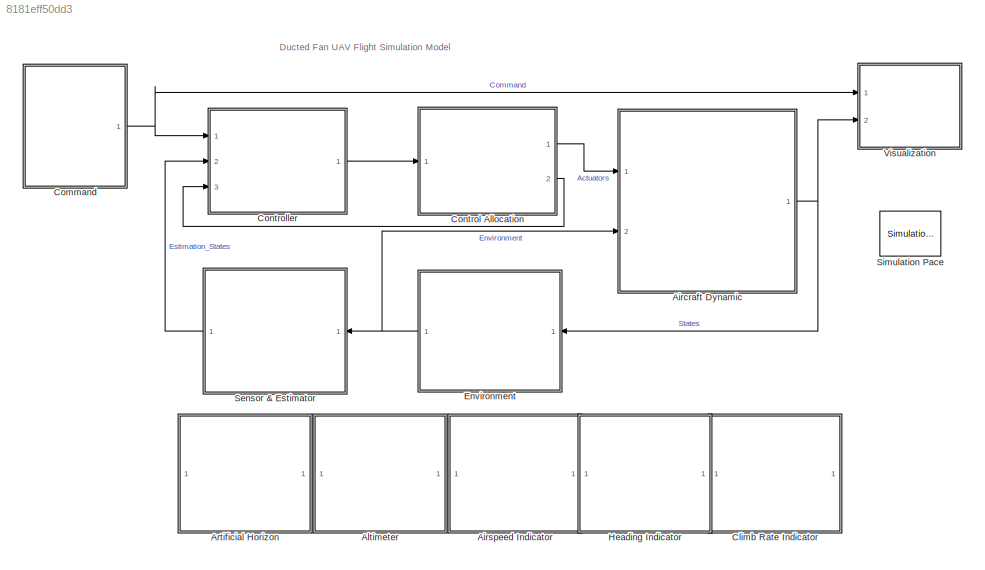
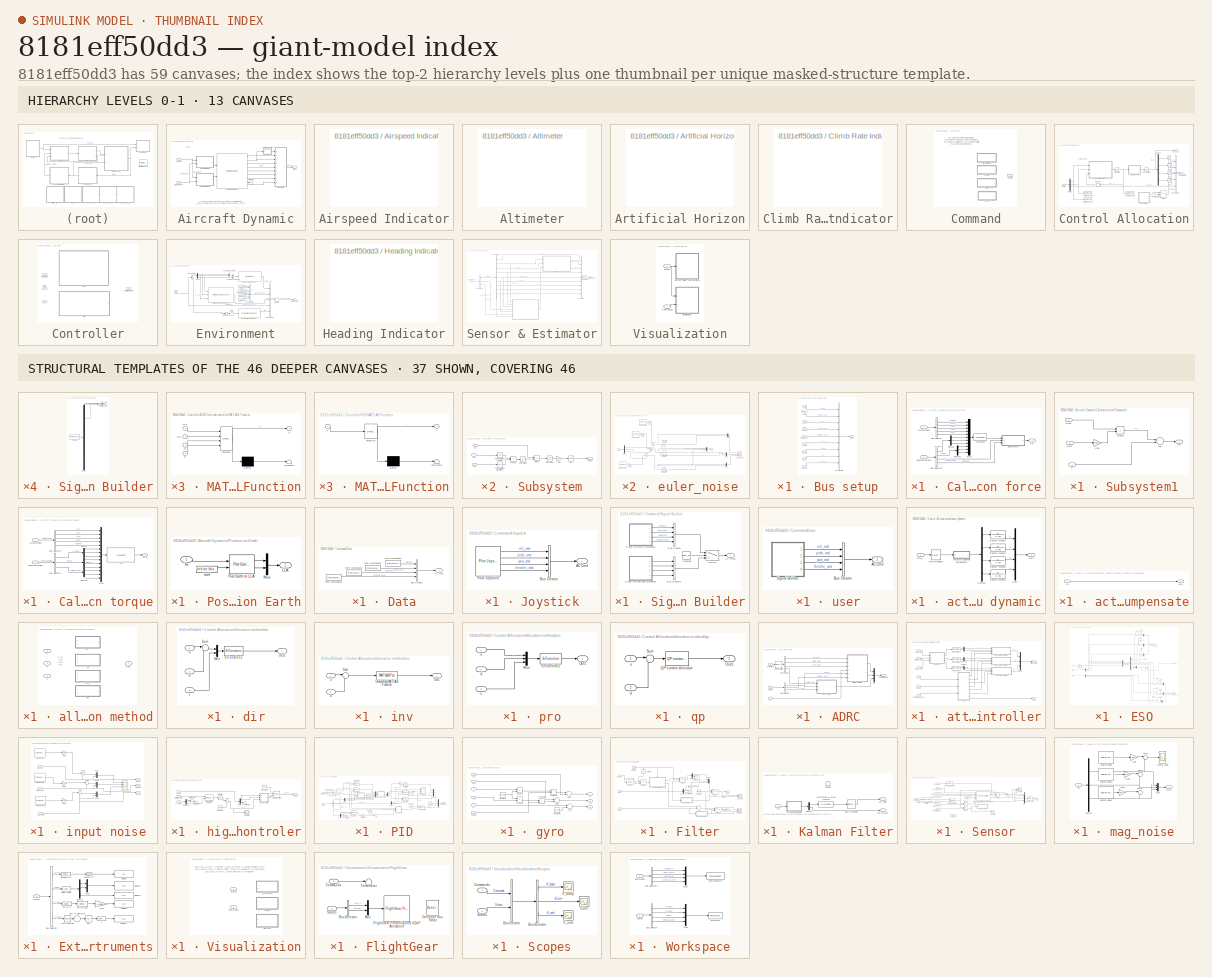
[diagram: thumbnail index - top-2 hierarchy levels (13 canvases) + 37 structural-template representatives of the remaining 46 canvases]
MODEL slx_8181eff50dd3
KIND model
CONFIG AbsTol = auto
CONFIG EnableMultiTasking = on
CONFIG FixedStep = 0.005
CONFIG MaxStep = auto
CONFIG MinStep = auto
CONFIG RelTol = 1e-3
CONFIG SampleTimeConstraint = Unconstrained
CONFIG Solver = FixedStepAuto
CONFIG SolverName = FixedStepAuto
CONFIG StartTime = 0
CONFIG StopTime = end_time
BLOCK [SubSystem] Aircraft Dynamic
  MinAlgLoopOccurrences = on
  Ports = [2, 1]
  RequestExecContextInheritance = off
  TreatAsAtomicUnit = on
BLOCK [Reference] Aircraft Dynamic/6DOF (Quaternion)  REF=shared6dof/6DOF (Euler Angles)
  Ports = [2, 9]
  SourceBlock = shared6dof/6DOF (Euler Angles)
  SourceProductBaseCode = AE
  SourceProductName = Aerospace Blockset
  SourceType = 6DOF EoM (Body Axis)
BLOCK [Inport] Aircraft Dynamic/Actuators
  IconDisplay = Port number
  OutDataTypeStr = Bus: ActuatorsBus
BLOCK [SubSystem] Aircraft Dynamic/Bus setup
  Ports = [9, 1]
  RequestExecContextInheritance = off
BLOCK [Inport] Aircraft Dynamic/Bus setup/Accel_b
  IconDisplay = Port number
  Port = 9
  PortDimensions = 3
BLOCK [BusCreator] Aircraft Dynamic/Bus setup/Bus Creator5
  DisplayOption = bar
  InheritFromInputs = on
  Inputs = 9
  NonVirtualBus = on
  OutDataTypeStr = Bus: StatesBus
  Ports = [9, 1]
BLOCK [Inport] Aircraft Dynamic/Bus setup/DCM_be
  IconDisplay = Port number
  Port = 5
  PortDimensions = [3 3]
BLOCK [Inport] Aircraft Dynamic/Bus setup/Euler
  IconDisplay = Port number
  Port = 4
  PortDimensions = 3
BLOCK [Inport] Aircraft Dynamic/Bus setup/LLA
  IconDisplay = Port number
  PortDimensions = 3
BLOCK [Inport] Aircraft Dynamic/Bus setup/Omega_b
  IconDisplay = Port number
  Port = 7
  PortDimensions = 3
BLOCK [Outport] Aircraft Dynamic/Bus setup/States
  IconDisplay = Port number
BLOCK [Inport] Aircraft Dynamic/Bus setup/V_b
  IconDisplay = Port number
  Port = 6
  PortDimensions = 3
BLOCK [Inport] Aircraft Dynamic/Bus setup/V_ned
  IconDisplay = Port number
  Port = 2
  PortDimensions = 3
BLOCK [Inport] Aircraft Dynamic/Bus setup/X_ned
  IconDisplay = Port number
  Port = 3
  PortDimensions = 3
BLOCK [Inport] Aircraft Dynamic/Bus setup/dOmega_b
  IconDisplay = Port number
  Port = 8
  PortDimensions = 3
BLOCK [SubSystem] Aircraft Dynamic/Calculation force
  Ports = [2, 1]
  RequestExecContextInheritance = off
BLOCK [Inport] Aircraft Dynamic/Calculation force/ActuatorsBus
  IconDisplay = Port number
BLOCK [BusSelector] Aircraft Dynamic/Calculation force/Bus Selector
  OutputAsBus = off
  OutputSignals = speed,c1,c2,c3,c4
  Ports = [1, 5]
BLOCK [BusSelector] Aircraft Dynamic/Calculation force/Bus Selector1
  OutputAsBus = off
  OutputSignals = StatesBus.V_body,Wind,Gravity_ned,StatesBus.DCM_be
  Ports = [1, 4]
BLOCK [Demux] Aircraft Dynamic/Calculation force/Demux
  DisplayOption = bar
  Outputs = 3
  Ports = [1, 3]
BLOCK [Demux] Aircraft Dynamic/Calculation force/Demux1
  DisplayOption = bar
  Outputs = 3
  Ports = [1, 3]
BLOCK [Inport] Aircraft Dynamic/Calculation force/EnvironmentBus
  IconDisplay = Port number
  Port = 2
BLOCK [Outport] Aircraft Dynamic/Calculation force/F^b
  IconDisplay = Port number
BLOCK [Mux] Aircraft Dynamic/Calculation force/Mux1
  DisplayOption = bar
  Inputs = 11
  Ports = [11, 1]
BLOCK [S-Function] Aircraft Dynamic/Calculation force/S-Function
  EnableBusSupport = off
  FunctionName = s_Force
  Ports = [1, 1]
  SFcnIsStateOwnerBlock = off
  SFunctionDeploymentMode = off
BLOCK [SubSystem] Aircraft Dynamic/Calculation force/Subsystem1
  Ports = [3, 1]
  RequestExecContextInheritance = off
BLOCK [Sum] Aircraft Dynamic/Calculation force/Subsystem1/Add
  InputSameDT = off
  OutDataTypeStr = Inherit: Inherit via internal rule
  Ports = [2, 1]
  SaturateOnIntegerOverflow = off
BLOCK [Inport] Aircraft Dynamic/Calculation force/Subsystem1/F
  IconDisplay = Port number
BLOCK [Outport] Aircraft Dynamic/Calculation force/Subsystem1/F^b
  IconDisplay = Port number
BLOCK [Gain] Aircraft Dynamic/Calculation force/Subsystem1/Gain
  Gain = mass
  OutDataTypeStr = Inherit: Inherit via internal rule
  ParamDataTypeStr = Inherit: Inherit via internal rule
  SaturateOnIntegerOverflow = off
BLOCK [Product] Aircraft Dynamic/Calculation force/Subsystem1/Product
  InputSameDT = off
  Multiplication = Matrix(*)
  OutDataTypeStr = Inherit: Inherit via internal rule
  Ports = [2, 1]
  RndMeth = Floor
  SaturateOnIntegerOverflow = off
BLOCK [Inport] Aircraft Dynamic/Calculation force/Subsystem1/Rn2b
  IconDisplay = Port number
  Port = 3
BLOCK [Inport] Aircraft Dynamic/Calculation force/Subsystem1/g_ned
  IconDisplay = Port number
  Port = 2
BLOCK [SubSystem] Aircraft Dynamic/Calculation torque
  Ports = [2, 1]
  RequestExecContextInheritance = off
BLOCK [Inport] Aircraft Dynamic/Calculation torque/ActuatorsBus
  IconDisplay = Port number
  OutDataTypeStr = Bus: ActuatorsBus
BLOCK [BusSelector] Aircraft Dynamic/Calculation torque/Bus Selector1
  OutputAsBus = off
  OutputSignals = StatesBus.V_body,Wind,StatesBus.Omega_body
  Ports = [1, 3]
BLOCK [BusSelector] Aircraft Dynamic/Calculation torque/Bus Selector2
  OutputAsBus = off
  OutputSignals = c1,c2,c3,c4,speed
  Ports = [1, 5]
BLOCK [Demux] Aircraft Dynamic/Calculation torque/Demux
  DisplayOption = bar
  Outputs = 3
  Ports = [1, 3]
BLOCK [Demux] Aircraft Dynamic/Calculation torque/Demux1
  DisplayOption = bar
  Outputs = 3
  Ports = [1, 3]
BLOCK [Demux] Aircraft Dynamic/Calculation torque/Demux2
  DisplayOption = bar
  Outputs = 3
  Ports = [1, 3]
BLOCK [Inport] Aircraft Dynamic/Calculation torque/EnvironmentBus
  IconDisplay = Port number
  OutDataTypeStr = Bus: EnvironmentBus
  Port = 2
BLOCK [S-Function] Aircraft Dynamic/Calculation torque/M
  EnableBusSupport = off
  FunctionName = s_Torque
  Ports = [1, 1]
  SFcnIsStateOwnerBlock = off
  SFunctionDeploymentMode = off
BLOCK [Outport] Aircraft Dynamic/Calculation torque/M^b
  IconDisplay = Port number
BLOCK [Mux] Aircraft Dynamic/Calculation torque/Mux2
  DisplayOption = bar
  Inputs = 14
  Ports = [14, 1]
BLOCK [Inport] Aircraft Dynamic/Environment
  IconDisplay = Port number
  OutDataTypeStr = Bus: EnvironmentBus
  Port = 2
BLOCK [SubSystem] Aircraft Dynamic/Position on Earth
  Ports = [1, 1]
  Priority = 1
  RequestExecContextInheritance = off
  TreatAsAtomicUnit = on
BLOCK [Reference] Aircraft Dynamic/Position on Earth/Flat Earth to LLA  REF=aerolibtransform2/Flat Earth to LLA
  Ports = [2, 2]
  SourceBlock = aerolibtransform2/Flat Earth to LLA
  SourceProductBaseCode = AE
  SourceProductName = Aerospace Blockset
  SourceType = Flat Earth to LLA
BLOCK [Outport] Aircraft Dynamic/Position on Earth/LLA
  IconDisplay = Port number
BLOCK [Mux] Aircraft Dynamic/Position on Earth/Mux
  DisplayOption = bar
  Inputs = 2
  Ports = [2, 1]
BLOCK [Inport] Aircraft Dynamic/Position on Earth/Xe
  IconDisplay = Port number
BLOCK [Constant] Aircraft Dynamic/Position on Earth/href
  Value = Vehicle.Nonlinear.Nonlinear.PositionOnEarth.href
BLOCK [Outport] Aircraft Dynamic/States
  IconDisplay = Port number
BLOCK [Terminator] Aircraft Dynamic/Terminator
BLOCK [SubSystem] Airspeed Indicator
  DialogController = aeroblksHMICreateDDGDialog
  IsWebBlock = on
  Ports = []
  RequestExecContextInheritance = off
BLOCK [SubSystem] Altimeter
  DialogController = aeroblksHMICreateDDGDialog
  IsWebBlock = on
  Ports = []
  RequestExecContextInheritance = off
BLOCK [SubSystem] Artificial Horizon
  DialogController = aeroblksHMICreateDDGDialog
  IsWebBlock = on
  Ports = []
  RequestExecContextInheritance = off
BLOCK [SubSystem] Climb Rate Indicator
  DialogController = aeroblksHMICreateDDGDialog
  IsWebBlock = on
  Ports = []
  RequestExecContextInheritance = off
BLOCK [SubSystem] Command
  Ports = [0, 1]
  RequestExecContextInheritance = off
  Variant = on
BLOCK [Outport] Command/AC Cmd
  IconDisplay = Port number
  OutDataTypeStr = Bus: CommandBus
BLOCK [SubSystem] Command/Data
  Ports = [0, 1]
  RequestExecContextInheritance = off
  VariantControl = VSS_COMMAND_PRESAVED
BLOCK [Outport] Command/Data/AC Cmd
  IconDisplay = Port number
  OutDataTypeStr = Bus: CommandBus
BLOCK [BusCreator] Command/Data/Bus Creator
  DisplayOption = bar
  InheritFromInputs = on
  Inputs = 4
  NonVirtualBus = on
  OutDataTypeStr = Bus: CommandBus
  Ports = [4, 1]
BLOCK [FromWorkspace] Command/Data/From Workspace
  SampleTime = 0
  VariableName = cmdroll
  ZeroCross = on
BLOCK [FromWorkspace] Command/Data/From Workspace1
  SampleTime = 0
  VariableName = cmdpitch
  ZeroCross = on
BLOCK [FromWorkspace] Command/Data/From Workspace2
  SampleTime = 0
  VariableName = cmdyaw
  ZeroCross = on
BLOCK [FromWorkspace] Command/Data/From Workspace3
  SampleTime = 0
  VariableName = cmdh
  ZeroCross = on
BLOCK [SubSystem] Command/Joystick
  Ports = [0, 1]
  RequestExecContextInheritance = off
  VariantControl = VSS_COMMAND_JOYSTICK
BLOCK [Outport] Command/Joystick/AC Cmd
  IconDisplay = Port number
  OutDataTypeStr = Bus: CommandBus
BLOCK [BusCreator] Command/Joystick/Bus Creator
  DisplayOption = bar
  InheritFromInputs = on
  Inputs = 4
  NonVirtualBus = on
  OutDataTypeStr = Bus: CommandBus
  Ports = [4, 1]
BLOCK [Reference] Command/Joystick/Pilot Joystick  REF=aerolibanimutils/Pilot Joystick
  Ports = [0, 4]
  SourceBlock = aerolibanimutils/Pilot Joystick
  SourceProductBaseCode = AE
  SourceProductName = Aerospace Blockset
  SourceType = PilotJoystick
BLOCK [SubSystem] Command/Signal Builder
  Ports = [0, 1]
  RequestExecContextInheritance = off
  VariantControl = VSS_COMMAND_SIGBLDR
BLOCK [Outport] Command/Signal Builder/AC Cmd
  IconDisplay = Port number
  OutDataTypeStr = Bus: CommandBus
BLOCK [BusCreator] Command/Signal Builder/Bus Creator
  DisplayOption = bar
  InheritFromInputs = on
  Inputs = 4
  NonVirtualBus = on
  OutDataTypeStr = Bus: CommandBus
  Ports = [4, 1]
BLOCK [BusCreator] Command/Signal Builder/Bus Creator1
  DisplayOption = bar
  InheritFromInputs = on
  Inputs = 4
  NonVirtualBus = on
  OutDataTypeStr = Bus: CommandBus
  Ports = [4, 1]
BLOCK [Constant] Command/Signal Builder/Constant
  Value = builder_switch
BLOCK [SubSystem] Command/Signal Builder/Signal Builder_Disturbance
  ClipboardFcn = sigbuilder_block('clipboard');
  CloseFcn = sigbuilder_block('close');
  ContinueFcn = sigbuilder_block('continue');
  CopyFcn = sigbuilder_block('copy');
  DeleteFcn = sigbuilder_block('delete');
  LoadFcn = sigbuilder_block('load');
  MaskHideContents = on
  ModelCloseFcn = sigbuilder_block('modelClose');
  NameChangeFcn = sigbuilder_block('namechange');
  OpenFcn = sigbuilder_block('open',[3 6 804 505.5 ]);
  PauseFcn = sigbuilder_block('pause');
  Ports = [0, 4]
  PreSaveFcn = sigbuilder_block('preSave');
  RequestExecContextInheritance = off
  StartFcn = sigbuilder_block('start');
  StopFcn = sigbuilder_block('stop');
  Tag = STV Subsys
BLOCK [Demux] Command/Signal Builder/Signal Builder_Disturbance/Demux
  Ports = [1, 4]
  Tag = STV Demux
BLOCK [FromWorkspace] Command/Signal Builder/Signal Builder_Disturbance/FromWs
  SampleTime = 0
  Tag = STV FromWs
  VariableName = tuvar
  ZeroCross = on
BLOCK [Outport] Command/Signal Builder/Signal Builder_Disturbance/picth_cmd
  IconDisplay = Port number
  Port = 2
  Tag = STV Outport
BLOCK [Outport] Command/Signal Builder/Signal Builder_Disturbance/roll_cmd
  IconDisplay = Port number
  Tag = STV Outport
BLOCK [Outport] Command/Signal Builder/Signal Builder_Disturbance/throttle_cmd
  IconDisplay = Port number
  Port = 4
  Tag = STV Outport
BLOCK [Outport] Command/Signal Builder/Signal Builder_Disturbance/yaw_cmd
  IconDisplay = Port number
  Port = 3
  Tag = STV Outport
BLOCK [SubSystem] Command/Signal Builder/Signal Builder_noDisturbance
  ClipboardFcn = sigbuilder_block('clipboard');
  CloseFcn = sigbuilder_block('close');
  ContinueFcn = sigbuilder_block('continue');
  CopyFcn = sigbuilder_block('copy');
  DeleteFcn = sigbuilder_block('delete');
  LoadFcn = sigbuilder_block('load');
  MaskHideContents = on
  ModelCloseFcn = sigbuilder_block('modelClose');
  NameChangeFcn = sigbuilder_block('namechange');
  OpenFcn = sigbuilder_block('open',[6 30 1012.5 446.25 ]);
  PauseFcn = sigbuilder_block('pause');
  Ports = [0, 4]
  PreSaveFcn = sigbuilder_block('preSave');
  RequestExecContextInheritance = off
  StartFcn = sigbuilder_block('start');
  StopFcn = sigbuilder_block('stop');
  Tag = STV Subsys
BLOCK [Demux] Command/Signal Builder/Signal Builder_noDisturbance/Demux
  Ports = [1, 4]
  Tag = STV Demux
BLOCK [FromWorkspace] Command/Signal Builder/Signal Builder_noDisturbance/FromWs
  SampleTime = 0
  Tag = STV FromWs
  VariableName = tuvar
  ZeroCross = on
BLOCK [Outport] Command/Signal Builder/Signal Builder_noDisturbance/picth_cmd
  IconDisplay = Port number
  Port = 2
  Tag = STV Outport
BLOCK [Outport] Command/Signal Builder/Signal Builder_noDisturbance/roll_cmd
  IconDisplay = Port number
  Tag = STV Outport
BLOCK [Outport] Command/Signal Builder/Signal Builder_noDisturbance/throttle_cmd
  IconDisplay = Port number
  Port = 4
  Tag = STV Outport
BLOCK [Outport] Command/Signal Builder/Signal Builder_noDisturbance/yaw_cmd
  IconDisplay = Port number
  Port = 3
  Tag = STV Outport
BLOCK [Switch] Command/Signal Builder/Switch
  Criteria = u2 > Threshold
  InputSameDT = off
  SaturateOnIntegerOverflow = off
BLOCK [SubSystem] Command/user
  Ports = [0, 1]
  RequestExecContextInheritance = off
  VariantControl = VSS_COMMAND_user
BLOCK [Outport] Command/user/AC Cmd
  IconDisplay = Port number
  OutDataTypeStr = Bus: CommandBus
BLOCK [BusCreator] Command/user/Bus Creator
  DisplayOption = bar
  InheritFromInputs = on
  Inputs = 4
  NonVirtualBus = on
  OutDataTypeStr = Bus: CommandBus
  Ports = [4, 1]
BLOCK [SubSystem] Command/user/Signal Builder
  ClipboardFcn = sigbuilder_block('clipboard');
  CloseFcn = sigbuilder_block('close');
  ContinueFcn = sigbuilder_block('continue');
  CopyFcn = sigbuilder_block('copy');
  DeleteFcn = sigbuilder_block('delete');
  LoadFcn = sigbuilder_block('load');
  MaskHideContents = on
  ModelCloseFcn = sigbuilder_block('modelClose');
  NameChangeFcn = sigbuilder_block('namechange');
  OpenFcn = sigbuilder_block('open',[6 30 1012.5 446.25 ]);
  PauseFcn = sigbuilder_block('pause');
  Ports = [0, 4]
  PreSaveFcn = sigbuilder_block('preSave');
  RequestExecContextInheritance = off
  StartFcn = sigbuilder_block('start');
  StopFcn = sigbuilder_block('stop');
  Tag = STV Subsys
BLOCK [Demux] Command/user/Signal Builder/Demux
  Ports = [1, 4]
  Tag = STV Demux
BLOCK [FromWorkspace] Command/user/Signal Builder/FromWs
  SampleTime = 0
  Tag = STV FromWs
  VariableName = tuvar
  ZeroCross = on
BLOCK [Outport] Command/user/Signal Builder/picth_cmd
  IconDisplay = Port number
  Port = 2
  Tag = STV Outport
BLOCK [Outport] Command/user/Signal Builder/roll_cmd
  IconDisplay = Port number
  Tag = STV Outport
BLOCK [Outport] Command/user/Signal Builder/throttle_cmd
  IconDisplay = Port number
  Port = 4
  Tag = STV Outport
BLOCK [Outport] Command/user/Signal Builder/yaw_cmd
  IconDisplay = Port number
  Port = 3
  Tag = STV Outport
BLOCK [SubSystem] Control Allocation
  Ports = [1, 2]
  RequestExecContextInheritance = off
BLOCK [Outport] Control Allocation/ActuatorsBus
  IconDisplay = Port number
  OutDataTypeStr = Bus: ActuatorsBus
BLOCK [BusCreator] Control Allocation/Bus Creator
  DisplayOption = bar
  InheritFromInputs = on
  Inputs = 5
  OutDataTypeStr = Bus: ActuatorsBus
  Ports = [5, 1]
BLOCK [Constant] Control Allocation/Constant
  Value = sw_turb
BLOCK [Demux] Control Allocation/Demux
  DisplayOption = bar
  Outputs = [3,3,1]
  Ports = [1, 3]
BLOCK [Demux] Control Allocation/Demux1
  DisplayOption = bar
  Ports = [1, 4]
BLOCK [Memory] Control Allocation/Memory2
  InheritSampleTime = on
  InitialCondition = [0;0;0;0]
  LinearizeAsDelay = on
BLOCK [SubSystem] Control Allocation/Signal Builder
  ClipboardFcn = sigbuilder_block('clipboard');
  CloseFcn = sigbuilder_block('close');
  ContinueFcn = sigbuilder_block('continue');
  CopyFcn = sigbuilder_block('copy');
  DeleteFcn = sigbuilder_block('delete');
  LoadFcn = sigbuilder_block('load');
  MaskHideContents = on
  ModelCloseFcn = sigbuilder_block('modelClose');
  NameChangeFcn = sigbuilder_block('namechange');
  OpenFcn = sigbuilder_block('open',[336 114 630 307.5 ]);
  PauseFcn = sigbuilder_block('pause');
  Ports = [0, 4]
  PreSaveFcn = sigbuilder_block('preSave');
  RequestExecContextInheritance = off
  StartFcn = sigbuilder_block('start');
  StopFcn = sigbuilder_block('stop');
  Tag = STV Subsys
BLOCK [Demux] Control Allocation/Signal Builder/Demux
  Ports = [1, 4]
  Tag = STV Demux
BLOCK [FromWorkspace] Control Allocation/Signal Builder/FromWs
  SampleTime = 0
  Tag = STV FromWs
  VariableName = tuvar
  ZeroCross = on
BLOCK [Outport] Control Allocation/Signal Builder/picth_cmd
  IconDisplay = Port number
  Port = 2
  Tag = STV Outport
BLOCK [Outport] Control Allocation/Signal Builder/roll_cmd
  IconDisplay = Port number
  Tag = STV Outport
BLOCK [Outport] Control Allocation/Signal Builder/throttle_cmd
  IconDisplay = Port number
  Port = 4
  Tag = STV Outport
BLOCK [Outport] Control Allocation/Signal Builder/yaw_cmd
  IconDisplay = Port number
  Port = 3
  Tag = STV Outport
BLOCK [Sum] Control Allocation/Sum3
  IconShape = round
  InputSameDT = off
  Inputs = |++
  OutDataTypeStr = Inherit: Inherit via internal rule
  Ports = [2, 1]
  SaturateOnIntegerOverflow = off
BLOCK [Sum] Control Allocation/Sum4
  IconShape = round
  InputSameDT = off
  Inputs = |++
  OutDataTypeStr = Inherit: Inherit via internal rule
  Ports = [2, 1]
  SaturateOnIntegerOverflow = off
BLOCK [Sum] Control Allocation/Sum5
  IconShape = round
  InputSameDT = off
  Inputs = |++
  OutDataTypeStr = Inherit: Inherit via internal rule
  Ports = [2, 1]
  SaturateOnIntegerOverflow = off
BLOCK [Sum] Control Allocation/Sum6
  IconShape = round
  InputSameDT = off
  Inputs = |++
  OutDataTypeStr = Inherit: Inherit via internal rule
  Ports = [2, 1]
  SaturateOnIntegerOverflow = off
BLOCK [Switch] Control Allocation/Switch
  Criteria = u2 > Threshold
  InputSameDT = off
  SaturateOnIntegerOverflow = off
BLOCK [ToWorkspace] Control Allocation/To Workspace
  FixptAsFi = on
  MaxDataPoints = inf
  Ports = [1]
  SampleTime = 0.01
  Save2DSignal = 3-D array (concatenate along third dimension)
  SaveFormat = Timeseries
  VariableName = c
BLOCK [ToWorkspace] Control Allocation/To Workspace1
  FixptAsFi = on
  MaxDataPoints = inf
  Ports = [1]
  SampleTime = 0.01
  Save2DSignal = 3-D array (concatenate along third dimension)
  SaveFormat = Timeseries
  VariableName = u
BLOCK [ToWorkspace] Control Allocation/To Workspace3
  FixptAsFi = on
  MaxDataPoints = inf
  Ports = [1]
  SampleTime = 0.01
  Save2DSignal = 3-D array (concatenate along third dimension)
  SaveFormat = Timeseries
  VariableName = d
BLOCK [SubSystem] Control Allocation/actuator dynamic
  Ports = [1, 1]
  RequestExecContextInheritance = off
BLOCK [Demux] Control Allocation/actuator dynamic/Demux3
  DisplayOption = bar
  Ports = [1, 4]
BLOCK [Mux] Control Allocation/actuator dynamic/Mux1
  DisplayOption = bar
  Ports = [4, 1]
BLOCK [Outport] Control Allocation/actuator dynamic/Out1
  IconDisplay = Port number
BLOCK [RateTransition] Control Allocation/actuator dynamic/Rate Transition
BLOCK [TransferFcn] Control Allocation/actuator dynamic/Transfer Fcnnon1
  Denominator = [1 45]
  Numerator = 45
BLOCK [TransferFcn] Control Allocation/actuator dynamic/Transfer Fcnnon2
  Denominator = [1 45]
  Numerator = 45
BLOCK [TransferFcn] Control Allocation/actuator dynamic/Transfer Fcnnon3
  Denominator = [1 45]
  Numerator = 45
BLOCK [TransferFcn] Control Allocation/actuator dynamic/Transfer Fcnnon4
  Denominator = [1 45]
  Numerator = 45
BLOCK [SubSystem] Control Allocation/actuator dynamic/actuator dynamics compensate
  Ports = [1, 1]
  RequestExecContextInheritance = off
BLOCK [Inport] Control Allocation/actuator dynamic/actuator dynamics compensate/In1
  IconDisplay = Port number
BLOCK [Outport] Control Allocation/actuator dynamic/actuator dynamics compensate/Out1
  IconDisplay = Port number
BLOCK [Inport] Control Allocation/actuator dynamic/cmd_c
  IconDisplay = Port number
BLOCK [SubSystem] Control Allocation/allocation method
  Ports = [3, 1]
  RequestExecContextInheritance = off
  Variant = on
BLOCK [Outport] Control Allocation/allocation method/Out1
  IconDisplay = Port number
BLOCK [Inport] Control Allocation/allocation method/c
  IconDisplay = Port number
  Port = 3
BLOCK [Inport] Control Allocation/allocation method/d
  IconDisplay = Port number
  Port = 2
BLOCK [SubSystem] Control Allocation/allocation method/dir
  Ports = [3, 1]
  RequestExecContextInheritance = off
  VariantControl = allocatiom_method==1
BLOCK [Mux] Control Allocation/allocation method/dir/Mux
  DisplayOption = bar
  Inputs = 2
  Ports = [2, 1]
BLOCK [Outport] Control Allocation/allocation method/dir/Out1
  IconDisplay = Port number
BLOCK [S-Function] Control Allocation/allocation method/dir/S-Function2
  EnableBusSupport = off
  FunctionName = s_dir
  Ports = [1, 1]
  SFcnIsStateOwnerBlock = off
  SFunctionDeploymentMode = off
BLOCK [Sum] Control Allocation/allocation method/dir/Sum
  IconShape = round
  InputSameDT = off
  Inputs = |+-
  OutDataTypeStr = Inherit: Inherit via internal rule
  Ports = [2, 1]
  SaturateOnIntegerOverflow = off
BLOCK [Inport] Control Allocation/allocation method/dir/c
  IconDisplay = Port number
  Port = 3
BLOCK [Inport] Control Allocation/allocation method/dir/d
  IconDisplay = Port number
  Port = 2
BLOCK [Inport] Control Allocation/allocation method/dir/u
  IconDisplay = Port number
BLOCK [SubSystem] Control Allocation/allocation method/inv
  Ports = [2, 1]
  RequestExecContextInheritance = off
  VariantControl = allocatiom_method==0
BLOCK [MATLABFcn] Control Allocation/allocation method/inv/Interpreted MATLAB Function
  MATLABFcn = inv_method(u)
  Ports = [1, 1]
BLOCK [Outport] Control Allocation/allocation method/inv/Out1
  IconDisplay = Port number
BLOCK [Sum] Control Allocation/allocation method/inv/Sum
  IconShape = round
  InputSameDT = off
  Inputs = |+-
  OutDataTypeStr = Inherit: Inherit via internal rule
  Ports = [2, 1]
  SaturateOnIntegerOverflow = off
BLOCK [Inport] Control Allocation/allocation method/inv/d
  IconDisplay = Port number
  Port = 2
BLOCK [Inport] Control Allocation/allocation method/inv/u
  IconDisplay = Port number
BLOCK [SubSystem] Control Allocation/allocation method/pro
  Ports = [3, 1]
  RequestExecContextInheritance = off
  VariantControl = allocatiom_method==2
BLOCK [Mux] Control Allocation/allocation method/pro/Mux
  DisplayOption = bar
  Inputs = 3
  Ports = [3, 1]
BLOCK [Outport] Control Allocation/allocation method/pro/Out1
  IconDisplay = Port number
BLOCK [S-Function] Control Allocation/allocation method/pro/S-Function1
  EnableBusSupport = off
  FunctionName = s_prio1
  Ports = [1, 1]
  SFcnIsStateOwnerBlock = off
  SFunctionDeploymentMode = off
BLOCK [Inport] Control Allocation/allocation method/pro/c
  IconDisplay = Port number
  Port = 3
BLOCK [Inport] Control Allocation/allocation method/pro/d
  IconDisplay = Port number
  Port = 2
BLOCK [Inport] Control Allocation/allocation method/pro/u
  IconDisplay = Port number
BLOCK [SubSystem] Control Allocation/allocation method/qp
  Ports = [2, 1]
  RequestExecContextInheritance = off
  VariantControl = allocatiom_method==3
BLOCK [Outport] Control Allocation/allocation method/qp/Out1
  IconDisplay = Port number
BLOCK [Reference] Control Allocation/allocation method/qp/QP control allocator  REF=qcatlib/QP control allocator  (lib defined in mdl_185632192637, slx_3440b88f227d, +1 more)
  Ports = [1, 1]
  SourceBlock = qcatlib/QP control allocator
  SourceProductName = QP Control Allocation Toolbox
  SourceType = QP control allocator
BLOCK [Sum] Control Allocation/allocation method/qp/Sum
  IconShape = round
  InputSameDT = off
  Inputs = |+-
  OutDataTypeStr = Inherit: Inherit via internal rule
  Ports = [2, 1]
  SaturateOnIntegerOverflow = off
BLOCK [Inport] Control Allocation/allocation method/qp/d
  IconDisplay = Port number
  Port = 2
BLOCK [Inport] Control Allocation/allocation method/qp/u
  IconDisplay = Port number
BLOCK [Inport] Control Allocation/allocation method/u
  IconDisplay = Port number
BLOCK [Outport] Control Allocation/c_to_eso
  IconDisplay = Port number
  Port = 2
BLOCK [Saturate] Control Allocation/cmd_limit
  InputPortMap = u0
  LowerLimit = umin
  Ports = [1, 1]
  UpperLimit = umax
BLOCK [Inport] Control Allocation/control
  IconDisplay = Port number
BLOCK [Saturate] Control Allocation/physical limit
  InputPortMap = u0
  LowerLimit = umin
  Ports = [1, 1]
  UpperLimit = umax
BLOCK [SubSystem] Controller
  Ports = [3, 1]
  RequestExecContextInheritance = off
  Variant = on
  VariantControl = Variant1
BLOCK [SubSystem] Controller/ADRC
  Ports = [3, 1]
  RequestExecContextInheritance = off
  VariantControl = controller==0
BLOCK [BusSelector] Controller/ADRC/Bus Selector
  OutputAsBus = off
  OutputSignals = roll_cmd,pitch_cmd,yaw_cmd,throttle_cmd
  Ports = [1, 4]
BLOCK [BusSelector] Controller/ADRC/Bus Selector1
  OutputAsBus = off
  OutputSignals = Euler,Omega_body,X_ned
  Ports = [1, 3]
BLOCK [Inport] Controller/ADRC/Command
  IconDisplay = Port number
BLOCK [Mux] Controller/ADRC/Mux
  DisplayOption = bar
  Inputs = [3,3,1]
  Ports = [3, 1]
BLOCK [RateTransition] Controller/ADRC/Rate Transition
  OutPortSampleTime = 0.01
BLOCK [Inport] Controller/ADRC/States
  IconDisplay = Port number
  OutDataTypeStr = Bus: StatesBus
  Port = 2
BLOCK [SubSystem] Controller/ADRC/attitude controller
  Ports = [6, 2]
  RequestExecContextInheritance = off
BLOCK [Inport] Controller/ADRC/attitude controller/<Euler>
  IconDisplay = Port number
  Port = 5
BLOCK [Inport] Controller/ADRC/attitude controller/<Omega_body>
  IconDisplay = Port number
  Port = 6
BLOCK [Inport] Controller/ADRC/attitude controller/<pitch_cmd>
  IconDisplay = Port number
  Port = 2
BLOCK [Inport] Controller/ADRC/attitude controller/<roll_cmd>
  IconDisplay = Port number
BLOCK [Inport] Controller/ADRC/attitude controller/<yaw_cmd>
  IconDisplay = Port number
  Port = 3
BLOCK [Demux] Controller/ADRC/attitude controller/Demux4
  DisplayOption = bar
  Outputs = 2
  Ports = [1, 2]
BLOCK [Demux] Controller/ADRC/attitude controller/Demux5
  DisplayOption = bar
  Outputs = 2
  Ports = [1, 2]
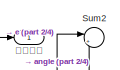
[diagram: Controller/ADRC/attitude controller/ESO - part 1/4, top center region]
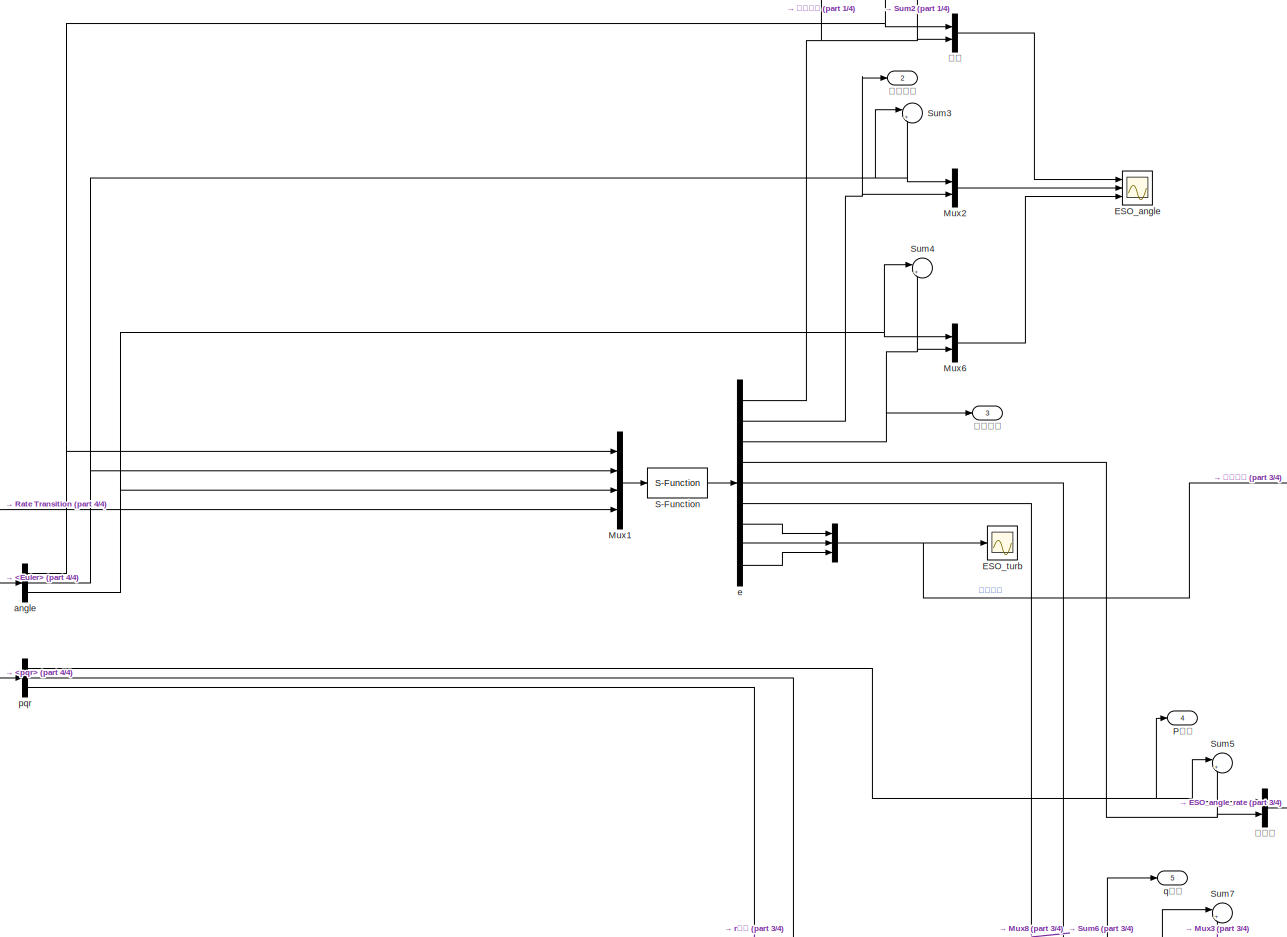
[diagram: Controller/ADRC/attitude controller/ESO - part 2/4, most of the canvas]
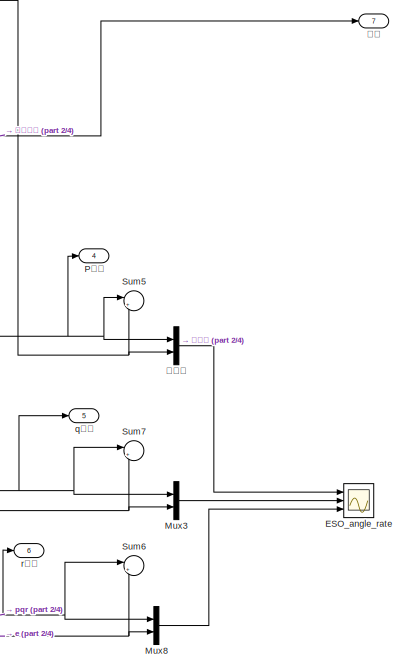
[diagram: Controller/ADRC/attitude controller/ESO - part 3/4, bottom right region]
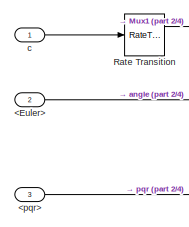
[diagram: Controller/ADRC/attitude controller/ESO - part 4/4, middle left region]
BLOCK [SubSystem] Controller/ADRC/attitude controller/ESO
  Ports = [3, 7]
  RequestExecContextInheritance = off
BLOCK [Mux] Controller/ADRC/attitude controller/ESO/ 
  DisplayOption = bar
  Inputs = 3
  Ports = [3, 1]
BLOCK [Inport] Controller/ADRC/attitude controller/ESO/<Euler>
  IconDisplay = Port number
  Port = 2
BLOCK [Inport] Controller/ADRC/attitude controller/ESO/<pqr>
  IconDisplay = Port number
  Port = 3
BLOCK [Scope] Controller/ADRC/attitude controller/ESO/ESO_angle
  Floating = off
  NumInputPorts = 3
  Ports = [3]
  ScopeSpecificationString = Simulink.scopes.TimeScopeBlockCfg('CurrentConfiguration', extmgr.ConfigurationSet(extmgr.Configuration('Core','General UI',true),extmgr.Configuration('Core','Source UI',true),extmgr.Configuration('Sources','WiredSimulink',true,'DataLoggingVariableName','ScopeData1'),extmgr.Configuration('Visuals','Time Domain',true,'SerializedDisplays',{struct('MinYLimReal','-0.05905','MaxYLimReal','0.40628','YLab...<+2874ch>
BLOCK [Scope] Controller/ADRC/attitude controller/ESO/ESO_angle_rate
  Floating = off
  NumInputPorts = 3
  Ports = [3]
  ScopeSpecificationString = Simulink.scopes.TimeScopeBlockCfg('CurrentConfiguration', extmgr.ConfigurationSet(extmgr.Configuration('Core','General UI',true),extmgr.Configuration('Core','Source UI',true),extmgr.Configuration('Sources','WiredSimulink',true,'DataLoggingVariableName','ScopeData2'),extmgr.Configuration('Visuals','Time Domain',true,'SerializedDisplays',{struct('MinYLimReal','-2.67005','MaxYLimReal','2.6682','YLabe...<+2798ch>
BLOCK [Scope] Controller/ADRC/attitude controller/ESO/ESO_turb
  Floating = off
  NumInputPorts = 1
  Ports = [1]
  ScopeSpecificationString = Simulink.scopes.TimeScopeBlockCfg('CurrentConfiguration', extmgr.ConfigurationSet(extmgr.Configuration('Core','General UI',true),extmgr.Configuration('Core','Source UI',true),extmgr.Configuration('Sources','WiredSimulink',true,'DataLoggingVariableName','ScopeData3'),extmgr.Configuration('Visuals','Time Domain',true,'SerializedDisplays',{struct('MinYLimReal','-0.17397','MaxYLimReal','0.03303','YLab...<+1547ch>
BLOCK [Mux] Controller/ADRC/attitude controller/ESO/Mux1
  DisplayOption = bar
  Ports = [4, 1]
BLOCK [Mux] Controller/ADRC/attitude controller/ESO/Mux2
  DisplayOption = bar
  Inputs = 2
  Ports = [2, 1]
BLOCK [Mux] Controller/ADRC/attitude controller/ESO/Mux3
  DisplayOption = bar
  Inputs = 2
  Ports = [2, 1]
BLOCK [Mux] Controller/ADRC/attitude controller/ESO/Mux6
  DisplayOption = bar
  Inputs = 2
  Ports = [2, 1]
BLOCK [Mux] Controller/ADRC/attitude controller/ESO/Mux8
  DisplayOption = bar
  Inputs = 2
  Ports = [2, 1]
BLOCK [Outport] Controller/ADRC/attitude controller/ESO/P估计
  IconDisplay = Port number
  Port = 4
BLOCK [RateTransition] Controller/ADRC/attitude controller/ESO/Rate Transition
  OutPortSampleTime = 0.01
BLOCK [S-Function] Controller/ADRC/attitude controller/ESO/S-Function
  EnableBusSupport = off
  FunctionName = eso
  Ports = [1, 1]
  SFcnIsStateOwnerBlock = off
  SFunctionDeploymentMode = off
BLOCK [Sum] Controller/ADRC/attitude controller/ESO/Sum2
  IconShape = round
  InputSameDT = off
  Inputs = |+-
  OutDataTypeStr = Inherit: Inherit via internal rule
  Ports = [2, 1]
  SaturateOnIntegerOverflow = off
BLOCK [Sum] Controller/ADRC/attitude controller/ESO/Sum3
  IconShape = round
  InputSameDT = off
  Inputs = |+-
  OutDataTypeStr = Inherit: Inherit via internal rule
  Ports = [2, 1]
  SaturateOnIntegerOverflow = off
BLOCK [Sum] Controller/ADRC/attitude controller/ESO/Sum4
  IconShape = round
  InputSameDT = off
  Inputs = |+-
  OutDataTypeStr = Inherit: Inherit via internal rule
  Ports = [2, 1]
  SaturateOnIntegerOverflow = off
BLOCK [Sum] Controller/ADRC/attitude controller/ESO/Sum5
  IconShape = round
  InputSameDT = off
  Inputs = |+-
  OutDataTypeStr = Inherit: Inherit via internal rule
  Ports = [2, 1]
  SaturateOnIntegerOverflow = off
BLOCK [Sum] Controller/ADRC/attitude controller/ESO/Sum6
  IconShape = round
  InputSameDT = off
  Inputs = |+-
  OutDataTypeStr = Inherit: Inherit via internal rule
  Ports = [2, 1]
  SaturateOnIntegerOverflow = off
BLOCK [Sum] Controller/ADRC/attitude controller/ESO/Sum7
  IconShape = round
  InputSameDT = off
  Inputs = |+-
  OutDataTypeStr = Inherit: Inherit via internal rule
  Ports = [2, 1]
  SaturateOnIntegerOverflow = off
BLOCK [Demux] Controller/ADRC/attitude controller/ESO/angle
  DisplayOption = bar
  Outputs = 3
  Ports = [1, 3]
BLOCK [Inport] Controller/ADRC/attitude controller/ESO/c
  IconDisplay = Port number
BLOCK [Demux] Controller/ADRC/attitude controller/ESO/e
  DisplayOption = bar
  Outputs = 9
  Ports = [1, 9]
BLOCK [Demux] Controller/ADRC/attitude controller/ESO/pqr
  DisplayOption = bar
  Outputs = 3
  Ports = [1, 3]
BLOCK [Outport] Controller/ADRC/attitude controller/ESO/q估计
  IconDisplay = Port number
  Port = 5
BLOCK [Outport] Controller/ADRC/attitude controller/ESO/r估计
  IconDisplay = Port number
  Port = 6
BLOCK [Outport] Controller/ADRC/attitude controller/ESO/俯仰估计
  IconDisplay = Port number
  Port = 2
BLOCK [Outport] Controller/ADRC/attitude controller/ESO/偏航估计
  IconDisplay = Port number
  Port = 3
BLOCK [Outport] Controller/ADRC/attitude controller/ESO/反馈
  IconDisplay = Port number
  Port = 7
BLOCK [Outport] Controller/ADRC/attitude controller/ESO/滚转估计
  IconDisplay = Port number
BLOCK [Mux] Controller/ADRC/attitude controller/ESO/角度
  DisplayOption = bar
  Inputs = 2
  Ports = [2, 1]
BLOCK [Mux] Controller/ADRC/attitude controller/ESO/角速度
  DisplayOption = bar
  Inputs = 2
  Ports = [2, 1]
BLOCK [SubSystem] Controller/ADRC/attitude controller/MATLAB Function
  ErrorFcn = Stateflow.Translate.translate
  PermitHierarchicalResolution = ExplicitOnly
  Ports = [4, 1]
  RequestExecContextInheritance = off
  SFBlockType = MATLAB Function
  TreatAsAtomicUnit = on
BLOCK [Demux] Controller/ADRC/attitude controller/MATLAB Function/ Demux 
  Outputs = 1
  Ports = [1, 1]
BLOCK [S-Function] Controller/ADRC/attitude controller/MATLAB Function/ SFunction 
  EnableBusSupport = on
  FunctionName = sf_sfun
  PortCounts = [4 2]
  Ports = [4, 2]
  SFcnIsStateOwnerBlock = off
  SFunctionDeploymentMode = off
  Tag = Stateflow S-Function flightSimulation 9
BLOCK [Terminator] Controller/ADRC/attitude controller/MATLAB Function/ Terminator 
BLOCK [Outport] Controller/ADRC/attitude controller/MATLAB Function/u_r
  IconDisplay = Port number
BLOCK [Inport] Controller/ADRC/attitude controller/MATLAB Function/x1
  IconDisplay = Port number
  Port = 3
BLOCK [Inport] Controller/ADRC/attitude controller/MATLAB Function/x1_d
  IconDisplay = Port number
BLOCK [Inport] Controller/ADRC/attitude controller/MATLAB Function/x2
  IconDisplay = Port number
  Port = 4
BLOCK [Inport] Controller/ADRC/attitude controller/MATLAB Function/x2_d
  IconDisplay = Port number
  Port = 2
BLOCK [SubSystem] Controller/ADRC/attitude controller/MATLAB Function2
  ErrorFcn = Stateflow.Translate.translate
  PermitHierarchicalResolution = ExplicitOnly
  Ports = [4, 1]
  RequestExecContextInheritance = off
  SFBlockType = MATLAB Function
  TreatAsAtomicUnit = on
BLOCK [Demux] Controller/ADRC/attitude controller/MATLAB Function2/ Demux 
  Outputs = 1
  Ports = [1, 1]
BLOCK [S-Function] Controller/ADRC/attitude controller/MATLAB Function2/ SFunction 
  EnableBusSupport = on
  FunctionName = sf_sfun
  PortCounts = [4 2]
  Ports = [4, 2]
  SFcnIsStateOwnerBlock = off
  SFunctionDeploymentMode = off
  Tag = Stateflow S-Function flightSimulation 10
BLOCK [Terminator] Controller/ADRC/attitude controller/MATLAB Function2/ Terminator 
BLOCK [Outport] Controller/ADRC/attitude controller/MATLAB Function2/u_q
  IconDisplay = Port number
BLOCK [Inport] Controller/ADRC/attitude controller/MATLAB Function2/x1
  IconDisplay = Port number
  Port = 3
BLOCK [Inport] Controller/ADRC/attitude controller/MATLAB Function2/x1_d
  IconDisplay = Port number
BLOCK [Inport] Controller/ADRC/attitude controller/MATLAB Function2/x2
  IconDisplay = Port number
  Port = 4
BLOCK [Inport] Controller/ADRC/attitude controller/MATLAB Function2/x2_d
  IconDisplay = Port number
  Port = 2
BLOCK [SubSystem] Controller/ADRC/attitude controller/MATLAB Function3
  ErrorFcn = Stateflow.Translate.translate
  PermitHierarchicalResolution = ExplicitOnly
  Ports = [4, 1]
  RequestExecContextInheritance = off
  SFBlockType = MATLAB Function
  TreatAsAtomicUnit = on
BLOCK [Demux] Controller/ADRC/attitude controller/MATLAB Function3/ Demux 
  Outputs = 1
  Ports = [1, 1]
BLOCK [S-Function] Controller/ADRC/attitude controller/MATLAB Function3/ SFunction 
  EnableBusSupport = on
  FunctionName = sf_sfun
  PortCounts = [4 2]
  Ports = [4, 2]
  SFcnIsStateOwnerBlock = off
  SFunctionDeploymentMode = off
  Tag = Stateflow S-Function flightSimulation 11
BLOCK [Terminator] Controller/ADRC/attitude controller/MATLAB Function3/ Terminator 
BLOCK [Outport] Controller/ADRC/attitude controller/MATLAB Function3/u_p
  IconDisplay = Port number
BLOCK [Inport] Controller/ADRC/attitude controller/MATLAB Function3/x1
  IconDisplay = Port number
  Port = 3
BLOCK [Inport] Controller/ADRC/attitude controller/MATLAB Function3/x1_d
  IconDisplay = Port number
BLOCK [Inport] Controller/ADRC/attitude controller/MATLAB Function3/x2
  IconDisplay = Port number
  Port = 4
BLOCK [Inport] Controller/ADRC/attitude controller/MATLAB Function3/x2_d
  IconDisplay = Port number
  Port = 2
BLOCK [Mux] Controller/ADRC/attitude controller/Mux5
  DisplayOption = bar
  Inputs = 3
  Ports = [3, 1]
BLOCK [S-Function] Controller/ADRC/attitude controller/S-Function
  EnableBusSupport = off
  FunctionName = s_yawTD
  Ports = [1, 1]
  SFcnIsStateOwnerBlock = off
  SFunctionDeploymentMode = off
BLOCK [S-Function] Controller/ADRC/attitude controller/S-Function1
  EnableBusSupport = off
  FunctionName = s_TD
  Ports = [1, 1]
  SFcnIsStateOwnerBlock = off
  SFunctionDeploymentMode = off
BLOCK [S-Function] Controller/ADRC/attitude controller/S-Function2
  EnableBusSupport = off
  FunctionName = s_TD
  Ports = [1, 1]
  SFcnIsStateOwnerBlock = off
  SFunctionDeploymentMode = off
BLOCK [Demux] Controller/ADRC/attitude controller/TD
  DisplayOption = bar
  Outputs = 2
  Ports = [1, 2]
BLOCK [Inport] Controller/ADRC/attitude controller/c
  IconDisplay = Port number
  Port = 4
BLOCK [SubSystem] Controller/ADRC/attitude controller/input noise
  Ports = [3, 3]
  RequestExecContextInheritance = off
BLOCK [Reference] Controller/ADRC/attitude controller/input noise/Colored Noise  REF=dspsrcs4/Colored Noise
  Ports = [0, 1]
  SourceBlock = dspsrcs4/Colored Noise
  SourceProductBaseCode = DS
  SourceProductName = DSP System Toolbox
  SourceType = dsp.simulink.ColoredNoise
BLOCK [Reference] Controller/ADRC/attitude controller/input noise/Colored Noise1  REF=dspsrcs4/Colored Noise
  Ports = [0, 1]
  SourceBlock = dspsrcs4/Colored Noise
  SourceProductBaseCode = DS
  SourceProductName = DSP System Toolbox
  SourceType = dsp.simulink.ColoredNoise
BLOCK [Reference] Controller/ADRC/attitude controller/input noise/Colored Noise2  REF=dspsrcs4/Colored Noise
  Ports = [0, 1]
  SourceBlock = dspsrcs4/Colored Noise
  SourceProductBaseCode = DS
  SourceProductName = DSP System Toolbox
  SourceType = dsp.simulink.ColoredNoise
BLOCK [Gain] Controller/ADRC/attitude controller/input noise/Gain
  Gain = 0.002
  OutDataTypeStr = Inherit: Inherit via internal rule
  ParamDataTypeStr = Inherit: Inherit via internal rule
  SaturateOnIntegerOverflow = off
BLOCK [Gain] Controller/ADRC/attitude controller/input noise/Gain1
  Gain = 0.002
  OutDataTypeStr = Inherit: Inherit via internal rule
  ParamDataTypeStr = Inherit: Inherit via internal rule
  SaturateOnIntegerOverflow = off
BLOCK [Gain] Controller/ADRC/attitude controller/input noise/Gain2
  Gain = 0.003
  OutDataTypeStr = Inherit: Inherit via internal rule
  ParamDataTypeStr = Inherit: Inherit via internal rule
  SaturateOnIntegerOverflow = off
BLOCK [Mux] Controller/ADRC/attitude controller/input noise/Mux1
  DisplayOption = bar
  Inputs = 2
  Ports = [2, 1]
BLOCK [Mux] Controller/ADRC/attitude controller/input noise/Mux2
  DisplayOption = bar
  Inputs = 2
  Ports = [2, 1]
BLOCK [Mux] Controller/ADRC/attitude controller/input noise/Mux3
  DisplayOption = bar
  Inputs = 2
  Ports = [2, 1]
BLOCK [Sum] Controller/ADRC/attitude controller/input noise/Sum1
  IconShape = round
  InputSameDT = off
  Inputs = |++
  OutDataTypeStr = Inherit: Inherit via internal rule
  Ports = [2, 1]
  SaturateOnIntegerOverflow = off
BLOCK [Sum] Controller/ADRC/attitude controller/input noise/Sum3
  IconShape = round
  InputSameDT = off
  Inputs = |++
  OutDataTypeStr = Inherit: Inherit via internal rule
  Ports = [2, 1]
  SaturateOnIntegerOverflow = off
BLOCK [Sum] Controller/ADRC/attitude controller/input noise/Sum4
  IconShape = round
  InputSameDT = off
  Inputs = |++
  OutDataTypeStr = Inherit: Inherit via internal rule
  Ports = [2, 1]
  SaturateOnIntegerOverflow = off
BLOCK [Scope] Controller/ADRC/attitude controller/input noise/cmd_noise
  Floating = off
  NumInputPorts = 3
  Ports = [3]
  ScopeSpecificationString = Simulink.scopes.TimeScopeBlockCfg('CurrentConfiguration', extmgr.ConfigurationSet(extmgr.Configuration('Core','General UI',true),extmgr.Configuration('Core','Source UI',true),extmgr.Configuration('Sources','WiredSimulink',true,'DataLoggingVariableName','ScopeData2','SampleTime','0.01'),extmgr.Configuration('Visuals','Time Domain',true,'SerializedDisplays',{struct('MinYLimReal','-0.04363','MaxYLimR...<+2925ch>
BLOCK [Inport] Controller/ADRC/attitude controller/input noise/pitch_cmd
  IconDisplay = Port number
  Port = 2
BLOCK [Outport] Controller/ADRC/attitude controller/input noise/ref_pitch
  IconDisplay = Port number
  Port = 2
BLOCK [Outport] Controller/ADRC/attitude controller/input noise/ref_roll
  IconDisplay = Port number
BLOCK [Outport] Controller/ADRC/attitude controller/input noise/ref_yaw
  IconDisplay = Port number
  Port = 3
BLOCK [Inport] Controller/ADRC/attitude controller/input noise/roll_cmd
  IconDisplay = Port number
BLOCK [Inport] Controller/ADRC/attitude controller/input noise/yaw_cmd
  IconDisplay = Port number
  Port = 3
BLOCK [Outport] Controller/ADRC/attitude controller/turb
  IconDisplay = Port number
  Port = 2
BLOCK [Outport] Controller/ADRC/attitude controller/virtual control
  IconDisplay = Port number
BLOCK [Inport] Controller/ADRC/c
  IconDisplay = Port number
  Port = 3
BLOCK [Outport] Controller/ADRC/controller output
  IconDisplay = Port number
BLOCK [SubSystem] Controller/ADRC/high controler
  Ports = [3, 1]
  RequestExecContextInheritance = off
BLOCK [Inport] Controller/ADRC/high controler/<Euler>
  IconDisplay = Port number
  Port = 2
BLOCK [Inport] Controller/ADRC/high controler/<X_ned>
  IconDisplay = Port number
  Port = 3
BLOCK [Inport] Controller/ADRC/high controler/<throttle_cmd>
  IconDisplay = Port number
BLOCK [Constant] Controller/ADRC/high controler/Constant
  Value = -9.788
BLOCK [Constant] Controller/ADRC/high controler/Constant1
  Value = 1225
BLOCK [Demux] Controller/ADRC/high controler/Demux
  DisplayOption = bar
  Outputs = 3
  Ports = [1, 3]
BLOCK [Demux] Controller/ADRC/high controler/Demux3
  DisplayOption = bar
  Outputs = 3
  Ports = [1, 3]
BLOCK [Reference] Controller/ADRC/high controler/N-Sample Switch  REF=dspswit3/N-Sample
Switch
  Ports = [2, 1]
  SourceBlock = dspswit3/N-Sample\nSwitch
  SourceProductBaseCode = DS
  SourceProductName = DSP System Toolbox
  SourceType = N-Sample Switch
BLOCK [Reference] Controller/ADRC/high controler/PID Controller (2DOF)7  REF=simulink/Continuous/PID Controller (2DOF)
  Ports = [2, 1]
  SourceBlock = simulink/Continuous/PID Controller (2DOF)
  SourceProductBaseCode = SL
  SourceProductName = Simulink
  SourceType = PID 2dof
BLOCK [Saturate] Controller/ADRC/high controler/Saturation
  InputPortMap = u0
  LowerLimit = -9.788*1.5
  Ports = [1, 1]
  UpperLimit = 9.788*1.5
BLOCK [Scope] Controller/ADRC/high controler/Scope
  Floating = off
  NumInputPorts = 1
  Ports = [1]
  ScopeSpecificationString = Simulink.scopes.TimeScopeBlockCfg('CurrentConfiguration', extmgr.ConfigurationSet(extmgr.Configuration('Core','General UI',true),extmgr.Configuration('Core','Source UI',true),extmgr.Configuration('Sources','WiredSimulink',true,'DataLoggingVariableName','ScopeData1'),extmgr.Configuration('Visuals','Time Domain',true,'SerializedDisplays',{struct('MinYLimReal','-28.1405','MaxYLimReal','8.5645','YLabe...<+1389ch>
BLOCK [SubSystem] Controller/ADRC/high controler/Subsystem
  Ports = [3, 1]
  RequestExecContextInheritance = off
BLOCK [Product] Controller/ADRC/high controler/Subsystem/Divide
  InputSameDT = off
  Inputs = */
  OutDataTypeStr = Inherit: Inherit via internal rule
  Ports = [2, 1]
  RndMeth = Floor
  SaturateOnIntegerOverflow = off
BLOCK [Gain] Controller/ADRC/high controler/Subsystem/Gain
  Gain = -1225^2/9.788
  OutDataTypeStr = Inherit: Inherit via internal rule
  ParamDataTypeStr = Inherit: Inherit via internal rule
  SaturateOnIntegerOverflow = off
BLOCK [Inport] Controller/ADRC/high controler/Subsystem/In3
  IconDisplay = Port number
  Port = 3
BLOCK [Product] Controller/ADRC/high controler/Subsystem/Product
  InputSameDT = off
  OutDataTypeStr = Inherit: Inherit via internal rule
  Ports = [2, 1]
  RndMeth = Floor
  SaturateOnIntegerOverflow = off
BLOCK [Saturate] Controller/ADRC/high controler/Subsystem/Saturation
  InputPortMap = u0
  LowerLimit = -9.788*3
  Ports = [1, 1]
  UpperLimit = -0.01
BLOCK [Saturate] Controller/ADRC/high controler/Subsystem/Saturation1
  InputPortMap = u0
  LowerLimit = 0.5
  Ports = [1, 1]
  UpperLimit = 1
BLOCK [Sqrt] Controller/ADRC/high controler/Subsystem/Sqrt
BLOCK [Trigonometry] Controller/ADRC/high controler/Subsystem/Trigonometric Function
  Operator = cos
  Ports = [1, 1]
BLOCK [Trigonometry] Controller/ADRC/high controler/Subsystem/Trigonometric Function1
  Operator = cos
  Ports = [1, 1]
BLOCK [Inport] Controller/ADRC/high controler/Subsystem/p
  IconDisplay = Port number
  Port = 2
BLOCK [Inport] Controller/ADRC/high controler/Subsystem/q
  IconDisplay = Port number
BLOCK [Outport] Controller/ADRC/high controler/Subsystem/speed
  IconDisplay = Port number
BLOCK [Sum] Controller/ADRC/high controler/Sum
  IconShape = round
  InputSameDT = off
  Inputs = |++
  OutDataTypeStr = Inherit: Inherit via internal rule
  Ports = [2, 1]
  SaturateOnIntegerOverflow = off
BLOCK [Terminator] Controller/ADRC/high controler/Terminator
BLOCK [Terminator] Controller/ADRC/high controler/Terminator2
BLOCK [Terminator] Controller/ADRC/high controler/Terminator3
BLOCK [Outport] Controller/ADRC/high controler/speed
  IconDisplay = Port number
BLOCK [Inport] Controller/Command 
  IconDisplay = Port number
  OutDataTypeStr = Bus: CommandBus
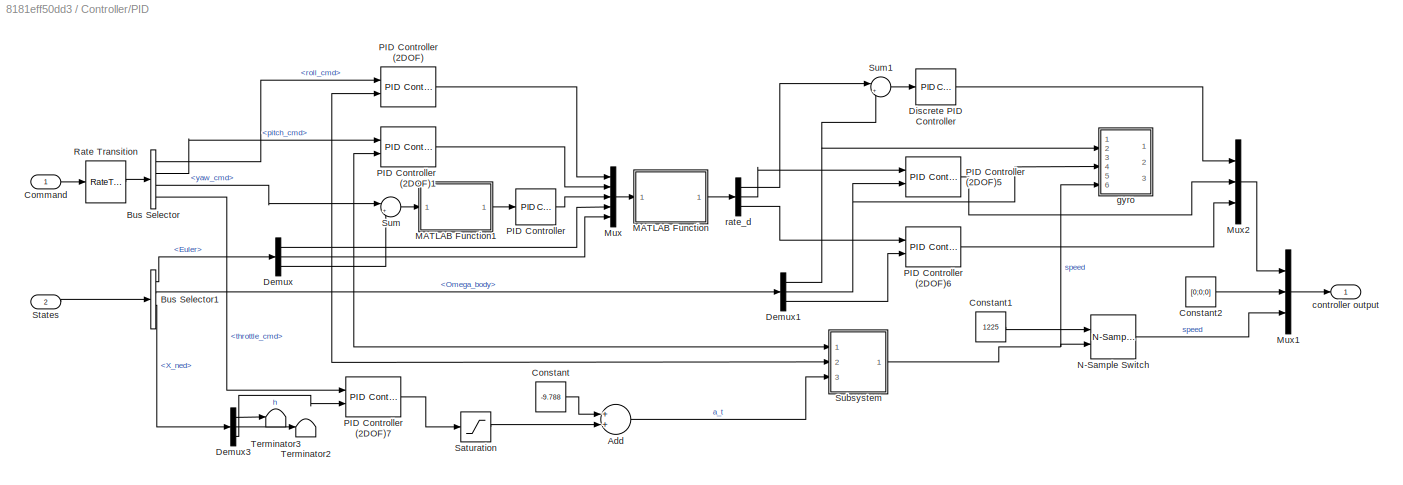
BLOCK [SubSystem] Controller/PID
  Ports = [2, 1]
  RequestExecContextInheritance = off
  VariantControl = controller==1
BLOCK [Sum] Controller/PID/Add
  InputSameDT = off
  OutDataTypeStr = Inherit: Inherit via internal rule
  Ports = [2, 1]
  SaturateOnIntegerOverflow = off
BLOCK [BusSelector] Controller/PID/Bus Selector
  OutputAsBus = off
  OutputSignals = roll_cmd,pitch_cmd,yaw_cmd,throttle_cmd
  Ports = [1, 4]
BLOCK [BusSelector] Controller/PID/Bus Selector1
  OutputAsBus = off
  OutputSignals = Euler,Omega_body,X_ned,V_ned
  Ports = [1, 4]
BLOCK [Inport] Controller/PID/Command
  IconDisplay = Port number
BLOCK [Constant] Controller/PID/Constant
  Value = -9.788
BLOCK [Constant] Controller/PID/Constant1
  Value = 1225
BLOCK [Constant] Controller/PID/Constant2
  Value = [0;0;0]
BLOCK [Demux] Controller/PID/Demux
  DisplayOption = bar
  Outputs = 3
  Ports = [1, 3]
BLOCK [Demux] Controller/PID/Demux1
  DisplayOption = bar
  Outputs = 3
  Ports = [1, 3]
BLOCK [Demux] Controller/PID/Demux3
  DisplayOption = bar
  Outputs = 3
  Ports = [1, 3]
BLOCK [Reference] Controller/PID/Discrete PID Controller  REF=simulink/Continuous/PID Controller
  Ports = [1, 1]
  SourceBlock = simulink/Continuous/PID Controller
  SourceProductBaseCode = SL
  SourceProductName = Simulink
  SourceType = PID 1dof
BLOCK [SubSystem] Controller/PID/MATLAB Function
  ErrorFcn = Stateflow.Translate.translate
  PermitHierarchicalResolution = ExplicitOnly
  Ports = [1, 1]
  RequestExecContextInheritance = off
  SFBlockType = MATLAB Function
  TreatAsAtomicUnit = on
BLOCK [Demux] Controller/PID/MATLAB Function/ Demux 
  Outputs = 1
  Ports = [1, 1]
BLOCK [S-Function] Controller/PID/MATLAB Function/ SFunction 
  EnableBusSupport = on
  FunctionName = sf_sfun
  PortCounts = [1 2]
  Ports = [1, 2]
  SFcnIsStateOwnerBlock = off
  SFunctionDeploymentMode = off
  Tag = Stateflow S-Function flightSimulation 18
BLOCK [Terminator] Controller/PID/MATLAB Function/ Terminator 
BLOCK [Inport] Controller/PID/MATLAB Function/u
  IconDisplay = Port number
BLOCK [Outport] Controller/PID/MATLAB Function/y
  IconDisplay = Port number
BLOCK [SubSystem] Controller/PID/MATLAB Function1
  ErrorFcn = Stateflow.Translate.translate
  PermitHierarchicalResolution = ExplicitOnly
  Ports = [1, 1]
  RequestExecContextInheritance = off
  SFBlockType = MATLAB Function
  TreatAsAtomicUnit = on
BLOCK [Demux] Controller/PID/MATLAB Function1/ Demux 
  Outputs = 1
  Ports = [1, 1]
BLOCK [S-Function] Controller/PID/MATLAB Function1/ SFunction 
  EnableBusSupport = on
  FunctionName = sf_sfun
  PortCounts = [1 2]
  Ports = [1, 2]
  SFcnIsStateOwnerBlock = off
  SFunctionDeploymentMode = off
  Tag = Stateflow S-Function flightSimulation 19
BLOCK [Terminator] Controller/PID/MATLAB Function1/ Terminator 
BLOCK [Inport] Controller/PID/MATLAB Function1/u
  IconDisplay = Port number
BLOCK [Outport] Controller/PID/MATLAB Function1/y
  IconDisplay = Port number
BLOCK [Mux] Controller/PID/Mux
  DisplayOption = bar
  Inputs = 5
  Ports = [5, 1]
BLOCK [Mux] Controller/PID/Mux1
  DisplayOption = bar
  Inputs = [3,3,1]
  Ports = [3, 1]
BLOCK [Mux] Controller/PID/Mux2
  DisplayOption = bar
  Inputs = 3
  Ports = [3, 1]
BLOCK [Reference] Controller/PID/N-Sample Switch  REF=dspswit3/N-Sample
Switch
  Ports = [2, 1]
  SourceBlock = dspswit3/N-Sample\nSwitch
  SourceProductBaseCode = DS
  SourceProductName = DSP System Toolbox
  SourceType = N-Sample Switch
BLOCK [Reference] Controller/PID/PID Controller  REF=simulink/Continuous/PID Controller
  Ports = [1, 1]
  SourceBlock = simulink/Continuous/PID Controller
  SourceProductBaseCode = SL
  SourceProductName = Simulink
  SourceType = PID 1dof
BLOCK [Reference] Controller/PID/PID Controller (2DOF)  REF=simulink/Continuous/PID Controller (2DOF)
  Ports = [2, 1]
  SourceBlock = simulink/Continuous/PID Controller (2DOF)
  SourceProductBaseCode = SL
  SourceProductName = Simulink
  SourceType = PID 2dof
BLOCK [Reference] Controller/PID/PID Controller (2DOF)1  REF=simulink/Continuous/PID Controller (2DOF)
  Ports = [2, 1]
  SourceBlock = simulink/Continuous/PID Controller (2DOF)
  SourceProductBaseCode = SL
  SourceProductName = Simulink
  SourceType = PID 2dof
BLOCK [Reference] Controller/PID/PID Controller (2DOF)5  REF=simulink/Continuous/PID Controller (2DOF)
  Ports = [2, 1]
  SourceBlock = simulink/Continuous/PID Controller (2DOF)
  SourceProductBaseCode = SL
  SourceProductName = Simulink
  SourceType = PID 2dof
BLOCK [Reference] Controller/PID/PID Controller (2DOF)6  REF=simulink/Continuous/PID Controller (2DOF)
  Ports = [2, 1]
  SourceBlock = simulink/Continuous/PID Controller (2DOF)
  SourceProductBaseCode = SL
  SourceProductName = Simulink
  SourceType = PID 2dof
BLOCK [Reference] Controller/PID/PID Controller (2DOF)7  REF=simulink/Continuous/PID Controller (2DOF)
  Ports = [2, 1]
  SourceBlock = simulink/Continuous/PID Controller (2DOF)
  SourceProductBaseCode = SL
  SourceProductName = Simulink
  SourceType = PID 2dof
BLOCK [RateTransition] Controller/PID/Rate Transition
  OutPortSampleTime = 0.01
BLOCK [Saturate] Controller/PID/Saturation
  InputPortMap = u0
  LowerLimit = -9.788*1.5
  Ports = [1, 1]
  UpperLimit = 9.788*1.5
BLOCK [Inport] Controller/PID/States
  IconDisplay = Port number
  OutDataTypeStr = Bus: StatesBus
  Port = 2
BLOCK [SubSystem] Controller/PID/Subsystem
  Ports = [3, 1]
  RequestExecContextInheritance = off
BLOCK [Product] Controller/PID/Subsystem/Divide
  InputSameDT = off
  Inputs = */
  OutDataTypeStr = Inherit: Inherit via internal rule
  Ports = [2, 1]
  RndMeth = Floor
  SaturateOnIntegerOverflow = off
BLOCK [Gain] Controller/PID/Subsystem/Gain
  Gain = -1225^2/9.788
  OutDataTypeStr = Inherit: Inherit via internal rule
  ParamDataTypeStr = Inherit: Inherit via internal rule
  SaturateOnIntegerOverflow = off
BLOCK [Inport] Controller/PID/Subsystem/In1
  IconDisplay = Port number
BLOCK [Inport] Controller/PID/Subsystem/In2
  IconDisplay = Port number
  Port = 2
BLOCK [Inport] Controller/PID/Subsystem/In3
  IconDisplay = Port number
  Port = 3
BLOCK [Product] Controller/PID/Subsystem/Product
  InputSameDT = off
  OutDataTypeStr = Inherit: Inherit via internal rule
  Ports = [2, 1]
  RndMeth = Floor
  SaturateOnIntegerOverflow = off
BLOCK [Saturate] Controller/PID/Subsystem/Saturation1
  InputPortMap = u0
  LowerLimit = 0.5
  Ports = [1, 1]
  UpperLimit = 1
BLOCK [Saturate] Controller/PID/Subsystem/Saturation2
  InputPortMap = u0
  LowerLimit = -9.788*3
  Ports = [1, 1]
  UpperLimit = -0.01
BLOCK [Sqrt] Controller/PID/Subsystem/Sqrt
BLOCK [Trigonometry] Controller/PID/Subsystem/Trigonometric Function
  Operator = cos
  Ports = [1, 1]
BLOCK [Trigonometry] Controller/PID/Subsystem/Trigonometric Function1
  Operator = cos
  Ports = [1, 1]
BLOCK [Outport] Controller/PID/Subsystem/speed
  IconDisplay = Port number
BLOCK [Sum] Controller/PID/Sum
  IconShape = round
  InputSameDT = off
  Inputs = |+-
  OutDataTypeStr = Inherit: Inherit via internal rule
  Ports = [2, 1]
  SaturateOnIntegerOverflow = off
BLOCK [Sum] Controller/PID/Sum1
  IconShape = round
  InputSameDT = off
  Inputs = |+-
  OutDataTypeStr = Inherit: Inherit via internal rule
  Ports = [2, 1]
  SaturateOnIntegerOverflow = off
BLOCK [Terminator] Controller/PID/Terminator2
BLOCK [Terminator] Controller/PID/Terminator3
BLOCK [Outport] Controller/PID/controller output
  IconDisplay = Port number
BLOCK [SubSystem] Controller/PID/gyro
  Ports = [6, 3]
  RequestExecContextInheritance = off
BLOCK [Sum] Controller/PID/gyro/Add1
  InputSameDT = off
  OutDataTypeStr = Inherit: Inherit via internal rule
  Ports = [2, 1]
  SaturateOnIntegerOverflow = off
BLOCK [Sum] Controller/PID/gyro/Add2
  InputSameDT = off
  Inputs = +-
  OutDataTypeStr = Inherit: Inherit via internal rule
  Ports = [2, 1]
  SaturateOnIntegerOverflow = off
BLOCK [Sum] Controller/PID/gyro/Add3
  InputSameDT = off
  Inputs = +-
  OutDataTypeStr = Inherit: Inherit via internal rule
  Ports = [2, 1]
  SaturateOnIntegerOverflow = off
BLOCK [Constant] Controller/PID/gyro/Constant1
  Value = 0.000029
BLOCK [Constant] Controller/PID/gyro/Constant2
  Value = 0.04238
BLOCK [Product] Controller/PID/gyro/Product
  InputSameDT = off
  OutDataTypeStr = Inherit: Inherit via internal rule
  Ports = [2, 1]
  RndMeth = Floor
  SaturateOnIntegerOverflow = off
BLOCK [Product] Controller/PID/gyro/Product1
  InputSameDT = off
  OutDataTypeStr = Inherit: Inherit via internal rule
  Ports = [2, 1]
  RndMeth = Floor
  SaturateOnIntegerOverflow = off
BLOCK [Product] Controller/PID/gyro/Product2
  InputSameDT = off
  OutDataTypeStr = Inherit: Inherit via internal rule
  Ports = [2, 1]
  RndMeth = Floor
  SaturateOnIntegerOverflow = off
BLOCK [Product] Controller/PID/gyro/Product3
  InputSameDT = off
  OutDataTypeStr = Inherit: Inherit via internal rule
  Ports = [2, 1]
  RndMeth = Floor
  SaturateOnIntegerOverflow = off
BLOCK [Inport] Controller/PID/gyro/p
  IconDisplay = Port number
  Port = 2
BLOCK [Inport] Controller/PID/gyro/q
  IconDisplay = Port number
  Port = 4
BLOCK [Inport] Controller/PID/gyro/speed
  IconDisplay = Port number
  Port = 6
BLOCK [Outport] Controller/PID/gyro/u_1
  IconDisplay = Port number
BLOCK [Outport] Controller/PID/gyro/u_2
  IconDisplay = Port number
  Port = 2
BLOCK [Outport] Controller/PID/gyro/u_3
  IconDisplay = Port number
  Port = 3
BLOCK [Inport] Controller/PID/gyro/u_p
  IconDisplay = Port number
BLOCK [Inport] Controller/PID/gyro/u_q
  IconDisplay = Port number
  Port = 3
BLOCK [Inport] Controller/PID/gyro/u_r
  IconDisplay = Port number
  Port = 5
BLOCK [Demux] Controller/PID/rate_d
  DisplayOption = bar
  Outputs = 3
  Ports = [1, 3]
BLOCK [Inport] Controller/States
  IconDisplay = Port number
  OutDataTypeStr = Bus: StatesBus
  Port = 2
BLOCK [Inport] Controller/c
  IconDisplay = Port number
  Port = 3
BLOCK [Outport] Controller/controller output
  IconDisplay = Port number
BLOCK [SubSystem] Environment
  Ports = [1, 1]
  RequestExecContextInheritance = off
BLOCK [Constant] Environment/Air Density
  Value = 1.225
BLOCK [Constant] Environment/Air Temp
  Value = 273+15
BLOCK [BusCreator] Environment/Bus Creator
  DisplayOption = bar
  InheritFromInputs = on
  Inputs = 5
  NonVirtualBus = on
  OutDataTypeStr = Bus: EnvironmentBus
  Ports = [5, 1]
BLOCK [BusCreator] Environment/Bus Creator1
  DisplayOption = bar
  InheritFromInputs = on
  Inputs = 4
  NonVirtualBus = on
  OutDataTypeStr = Bus: AtmosphereBus
  Ports = [4, 1]
BLOCK [BusSelector] Environment/Bus Selector
  OutputAsBus = off
  OutputSignals = LLA,V_ned
  Ports = [1, 2]
BLOCK [Demux] Environment/Demux
  DisplayOption = bar
  Outputs = 3
  Ports = [1, 3]
BLOCK [Reference] Environment/Discrete Wind Gust Model  REF=aerolibwind2/Discrete Wind Gust Model
  Ports = [1, 1]
  SourceBlock = aerolibwind2/Discrete Wind Gust Model
  SourceProductBaseCode = AE
  SourceProductName = Aerospace Blockset
  SourceType = Discrete Wind Gust Model
BLOCK [DotProduct] Environment/Dot Product
  OutDataTypeStr = Inherit: Inherit via internal rule
BLOCK [Outport] Environment/Environment
  IconDisplay = Port number
  OutDataTypeStr = Bus: EnvironmentBus
BLOCK [Memory] Environment/Memory
  InheritSampleTime = on
BLOCK [Constant] Environment/Pressure
  Value = 101.3e3
BLOCK [Constant] Environment/Speed of Sound
  Value = 340
BLOCK [Sqrt] Environment/Sqrt
BLOCK [Inport] Environment/States
  IconDisplay = Port number
  OutDataTypeStr = Bus: StatesBus
BLOCK [Concatenate] Environment/Vector Concatenate
  Ports = [2, 1]
BLOCK [Concatenate] Environment/Vector Concatenate1
  Ports = [2, 1]
BLOCK [GravityWGS84] Environment/WGS84 Gravity Model  
  Ports = [1, 1]
  action = None
  model = WGS84 Exact
  no_centrifugal = off
BLOCK [Reference] Environment/World Magnetic Model 2015  REF=aerolibgravity2/World Magnetic Model 2015
  Ports = [3, 1]
  SourceBlock = aerolibgravity2/World Magnetic Model 2015
  SourceProductBaseCode = AE
  SourceProductName = Aerospace Blockset
  SourceType = WorldMagneticModel2015
BLOCK [SubSystem] Heading Indicator
  DialogController = aeroblksHMICreateDDGDialog
  IsWebBlock = on
  Ports = []
  RequestExecContextInheritance = off
BLOCK [SubSystem] Sensor & Estimator
  Ports = [1, 1]
  RequestExecContextInheritance = off
BLOCK [BusCreator] Sensor & Estimator/Bus Creator5
  DisplayOption = bar
  InheritFromInputs = on
  Inputs = 9
  NonVirtualBus = on
  OutDataTypeStr = Bus: StatesBus
  Ports = [9, 1]
BLOCK [BusSelector] Sensor & Estimator/Bus Selector
  OutputAsBus = off
  OutputSignals = StatesBus,MagneticField_ned,Gravity_ned
  Ports = [1, 3]
BLOCK [BusSelector] Sensor & Estimator/Bus Selector1
  OutputAsBus = off
  OutputSignals = V_body,Omega_body,Euler,Accel_body,dOmega_body,V_ned,X_ned,LLA,DCM_be
  Ports = [1, 9]
BLOCK [Inport] Sensor & Estimator/Environment
  IconDisplay = Port number
  OutDataTypeStr = Bus: EnvironmentBus
BLOCK [Outport] Sensor & Estimator/Estimation_States
  IconDisplay = Port number
  OutDataTypeStr = Bus: StatesBus
BLOCK [SubSystem] Sensor & Estimator/Filter
  Ports = [3, 2]
  RequestExecContextInheritance = off
BLOCK [Sum] Sensor & Estimator/Filter/Add
  InputSameDT = off
  Inputs = -+
  OutDataTypeStr = Inherit: Inherit via internal rule
  Ports = [2, 1]
  SaturateOnIntegerOverflow = off
BLOCK [Constant] Sensor & Estimator/Filter/Constant
  Value = filter_switch
BLOCK [Demux] Sensor & Estimator/Filter/Demux
  DisplayOption = bar
  Outputs = 3
  Ports = [1, 3]
BLOCK [Demux] Sensor & Estimator/Filter/Demux1
  DisplayOption = bar
  Outputs = 3
  Ports = [1, 3]
BLOCK [Outport] Sensor & Estimator/Filter/Euler
  IconDisplay = Port number
  Port = 2
BLOCK [SubSystem] Sensor & Estimator/Filter/Kalman Filter
  Ports = [1, 2, 1]
  RequestExecContextInheritance = off
  TreatAsAtomicUnit = on
BLOCK [Demux] Sensor & Estimator/Filter/Kalman Filter/Demux
  DisplayOption = bar
  Outputs = [4,3]
  Ports = [1, 2]
BLOCK [EnablePort] Sensor & Estimator/Filter/Kalman Filter/Enable
  Ports = []
  StatesWhenEnabling = reset
BLOCK [Inport] Sensor & Estimator/Filter/Kalman Filter/In1
  IconDisplay = Port number
BLOCK [MATLABFcn] Sensor & Estimator/Filter/Kalman Filter/Interpreted MATLAB Function
  MATLABFcn = quatern2euler
  Ports = [1, 1]
BLOCK [SubSystem] Sensor & Estimator/Filter/Kalman Filter/MATLAB Function
  ErrorFcn = Stateflow.Translate.translate
  PermitHierarchicalResolution = ExplicitOnly
  Ports = [1, 1]
  RequestExecContextInheritance = off
  SFBlockType = MATLAB Function
  SystemSampleTime = 0.01
  TreatAsAtomicUnit = on
BLOCK [Demux] Sensor & Estimator/Filter/Kalman Filter/MATLAB Function/ Demux 
  Outputs = 1
  Ports = [1, 1]
BLOCK [S-Function] Sensor & Estimator/Filter/Kalman Filter/MATLAB Function/ SFunction 
  EnableBusSupport = on
  FunctionName = sf_sfun
  PortCounts = [1 2]
  Ports = [1, 2]
  SFcnIsStateOwnerBlock = off
  SFunctionDeploymentMode = off
  Tag = Stateflow S-Function flightSimulation 5
BLOCK [Terminator] Sensor & Estimator/Filter/Kalman Filter/MATLAB Function/ Terminator 
BLOCK [Inport] Sensor & Estimator/Filter/Kalman Filter/MATLAB Function/u
  IconDisplay = Port number
BLOCK [Outport] Sensor & Estimator/Filter/Kalman Filter/MATLAB Function/y
  IconDisplay = Port number
BLOCK [RateTransition] Sensor & Estimator/Filter/Kalman Filter/Rate Transition
BLOCK [Outport] Sensor & Estimator/Filter/Kalman Filter/ekf_euler
  IconDisplay = Port number
  InitialOutput = zeros(3,1)
  OutputWhenDisabled = reset
  SampleTime = 0.01
BLOCK [Outport] Sensor & Estimator/Filter/Kalman Filter/ekf_gro_bia
  IconDisplay = Port number
  InitialOutput = zeros(3,1)
  OutputWhenDisabled = reset
  Port = 2
BLOCK [Reference] Sensor & Estimator/Filter/Mean  REF=dspstat3/Mean
  Ports = [1, 1]
  SourceBlock = dspstat3/Mean
  SourceProductBaseCode = DS
  SourceProductName = DSP System Toolbox
  SourceType = Mean
  UserDataPersistent = on
BLOCK [Mux] Sensor & Estimator/Filter/Mux
  DisplayOption = bar
  Inputs = 3
  Ports = [3, 1]
BLOCK [Outport] Sensor & Estimator/Filter/Omega_body
  IconDisplay = Port number
BLOCK [Scope] Sensor & Estimator/Filter/Scope1
  Floating = off
  NumInputPorts = 2
  Ports = [2]
  ScopeSpecificationString = Simulink.scopes.TimeScopeBlockCfg('CurrentConfiguration', extmgr.ConfigurationSet(extmgr.Configuration('Core','General UI',true),extmgr.Configuration('Core','Source UI',true),extmgr.Configuration('Sources','WiredSimulink',true,'DataLoggingVariableName','ScopeData1'),extmgr.Configuration('Visuals','Time Domain',true,'SerializedDisplays',{struct('MinYLimReal','-1.01771','MaxYLimReal','1.26156','YLab...<+1958ch>
BLOCK [Scope] Sensor & Estimator/Filter/Scope3
  Floating = off
  NumInputPorts = 2
  Ports = [2]
  ScopeSpecificationString = Simulink.scopes.TimeScopeBlockCfg('CurrentConfiguration', extmgr.ConfigurationSet(extmgr.Configuration('Core','General UI',true),extmgr.Configuration('Core','Source UI',true),extmgr.Configuration('Sources','WiredSimulink',true,'DataLoggingVariableName','ScopeData4'),extmgr.Configuration('Visuals','Time Domain',true,'SerializedDisplays',{struct('MinYLimReal','-0.47004','MaxYLimReal','0.482','YLabel...<+1931ch>
BLOCK [Switch] Sensor & Estimator/Filter/Switch
  Criteria = u2 > Threshold
  InputSameDT = off
  SaturateOnIntegerOverflow = off
BLOCK [Switch] Sensor & Estimator/Filter/Switch1
  Criteria = u2 > Threshold
  InputSameDT = off
  SaturateOnIntegerOverflow = off
BLOCK [Switch] Sensor & Estimator/Filter/Switch2
  Criteria = u2 > Threshold
  InputSameDT = off
  SaturateOnIntegerOverflow = off
BLOCK [Switch] Sensor & Estimator/Filter/Switch3
  Criteria = u2 > Threshold
  InputSameDT = off
  SaturateOnIntegerOverflow = off
BLOCK [Terminator] Sensor & Estimator/Filter/Terminator
BLOCK [Terminator] Sensor & Estimator/Filter/Terminator1
BLOCK [Terminator] Sensor & Estimator/Filter/Terminator2
BLOCK [UnitDelay] Sensor & Estimator/Filter/Unit Delay
  InputProcessing = Elements as channels (sample based)
  SampleTime = -1
BLOCK [Step] Sensor & Estimator/Filter/enable
  SampleTime = 0.01
BLOCK [Inport] Sensor & Estimator/Filter/euler
  IconDisplay = Port number
  Port = 2
BLOCK [SubSystem] Sensor & Estimator/Filter/euler_noise
  Ports = [1, 1]
  RequestExecContextInheritance = off
BLOCK [Reference] Sensor & Estimator/Filter/euler_noise/Analog Filter Design  REF=dsparch4/Analog
Filter Design
  Ports = [1, 1]
  SourceBlock = dsparch4/Analog\nFilter Design
  SourceProductBaseCode = DS
  SourceProductName = DSP System Toolbox
  SourceType = Analog Filter Design
BLOCK [Reference] Sensor & Estimator/Filter/euler_noise/Analog Filter Design1  REF=dsparch4/Analog
Filter Design
  Ports = [1, 1]
  SourceBlock = dsparch4/Analog\nFilter Design
  SourceProductBaseCode = DS
  SourceProductName = DSP System Toolbox
  SourceType = Analog Filter Design
BLOCK [Reference] Sensor & Estimator/Filter/euler_noise/Analog Filter Design2  REF=dsparch4/Analog
Filter Design
  Ports = [1, 1]
  SourceBlock = dsparch4/Analog\nFilter Design
  SourceProductBaseCode = DS
  SourceProductName = DSP System Toolbox
  SourceType = Analog Filter Design
BLOCK [Reference] Sensor & Estimator/Filter/euler_noise/Colored Noise  REF=dspsrcs4/Colored Noise
  Ports = [0, 1]
  SourceBlock = dspsrcs4/Colored Noise
  SourceProductBaseCode = DS
  SourceProductName = DSP System Toolbox
  SourceType = dsp.simulink.ColoredNoise
BLOCK [Reference] Sensor & Estimator/Filter/euler_noise/Colored Noise1  REF=dspsrcs4/Colored Noise
  Ports = [0, 1]
  SourceBlock = dspsrcs4/Colored Noise
  SourceProductBaseCode = DS
  SourceProductName = DSP System Toolbox
  SourceType = dsp.simulink.ColoredNoise
BLOCK [Reference] Sensor & Estimator/Filter/euler_noise/Colored Noise2  REF=dspsrcs4/Colored Noise
  Ports = [0, 1]
  SourceBlock = dspsrcs4/Colored Noise
  SourceProductBaseCode = DS
  SourceProductName = DSP System Toolbox
  SourceType = dsp.simulink.ColoredNoise
BLOCK [Demux] Sensor & Estimator/Filter/euler_noise/Demux
  DisplayOption = bar
  Outputs = 3
  Ports = [1, 3]
BLOCK [Gain] Sensor & Estimator/Filter/euler_noise/Gain
  Gain = 0.00225
  OutDataTypeStr = Inherit: Inherit via internal rule
  ParamDataTypeStr = Inherit: Inherit via internal rule
  SaturateOnIntegerOverflow = off
BLOCK [Gain] Sensor & Estimator/Filter/euler_noise/Gain1
  Gain = 0.002633
  OutDataTypeStr = Inherit: Inherit via internal rule
  ParamDataTypeStr = Inherit: Inherit via internal rule
  SaturateOnIntegerOverflow = off
BLOCK [Gain] Sensor & Estimator/Filter/euler_noise/Gain2
  Gain = 0.00195
  OutDataTypeStr = Inherit: Inherit via internal rule
  ParamDataTypeStr = Inherit: Inherit via internal rule
  SaturateOnIntegerOverflow = off
BLOCK [Inport] Sensor & Estimator/Filter/euler_noise/In1
  IconDisplay = Port number
BLOCK [Mux] Sensor & Estimator/Filter/euler_noise/Mux
  DisplayOption = bar
  Inputs = 3
  Ports = [3, 1]
BLOCK [Mux] Sensor & Estimator/Filter/euler_noise/Mux1
  DisplayOption = bar
  Inputs = 2
  Ports = [2, 1]
BLOCK [Mux] Sensor & Estimator/Filter/euler_noise/Mux2
  DisplayOption = bar
  Inputs = 2
  Ports = [2, 1]
BLOCK [Mux] Sensor & Estimator/Filter/euler_noise/Mux3
  DisplayOption = bar
  Inputs = 2
  Ports = [2, 1]
BLOCK [Outport] Sensor & Estimator/Filter/euler_noise/Out1
  IconDisplay = Port number
BLOCK [Sum] Sensor & Estimator/Filter/euler_noise/Sum1
  IconShape = round
  InputSameDT = off
  Inputs = |++
  OutDataTypeStr = Inherit: Inherit via internal rule
  Ports = [2, 1]
  SaturateOnIntegerOverflow = off
BLOCK [Sum] Sensor & Estimator/Filter/euler_noise/Sum3
  IconShape = round
  InputSameDT = off
  Inputs = |++
  OutDataTypeStr = Inherit: Inherit via internal rule
  Ports = [2, 1]
  SaturateOnIntegerOverflow = off
BLOCK [Sum] Sensor & Estimator/Filter/euler_noise/Sum4
  IconShape = round
  InputSameDT = off
  Inputs = |++
  OutDataTypeStr = Inherit: Inherit via internal rule
  Ports = [2, 1]
  SaturateOnIntegerOverflow = off
BLOCK [Scope] Sensor & Estimator/Filter/euler_noise/senser_angle
  Floating = off
  NumInputPorts = 3
  Ports = [3]
  ScopeSpecificationString = Simulink.scopes.TimeScopeBlockCfg('CurrentConfiguration', extmgr.ConfigurationSet(extmgr.Configuration('Core','General UI',true),extmgr.Configuration('Core','Source UI',true),extmgr.Configuration('Sources','WiredSimulink',true,'DataLoggingVariableName','ScopeData2','SampleTime','0.005'),extmgr.Configuration('Visuals','Time Domain',true,'SerializedDisplays',{struct('MinYLimReal','-0.80682','MaxYLim...<+2966ch>
BLOCK [SubSystem] Sensor & Estimator/Filter/gyro_noise
  Ports = [1, 1]
  RequestExecContextInheritance = off
BLOCK [Reference] Sensor & Estimator/Filter/gyro_noise/Analog Filter Design  REF=dsparch4/Analog
Filter Design
  Ports = [1, 1]
  SourceBlock = dsparch4/Analog\nFilter Design
  SourceProductBaseCode = DS
  SourceProductName = DSP System Toolbox
  SourceType = Analog Filter Design
BLOCK [Reference] Sensor & Estimator/Filter/gyro_noise/Analog Filter Design1  REF=dsparch4/Analog
Filter Design
  Ports = [1, 1]
  SourceBlock = dsparch4/Analog\nFilter Design
  SourceProductBaseCode = DS
  SourceProductName = DSP System Toolbox
  SourceType = Analog Filter Design
BLOCK [Reference] Sensor & Estimator/Filter/gyro_noise/Analog Filter Design2  REF=dsparch4/Analog
Filter Design
  Ports = [1, 1]
  SourceBlock = dsparch4/Analog\nFilter Design
  SourceProductBaseCode = DS
  SourceProductName = DSP System Toolbox
  SourceType = Analog Filter Design
BLOCK [Reference] Sensor & Estimator/Filter/gyro_noise/Colored Noise  REF=dspsrcs4/Colored Noise
  Ports = [0, 1]
  SourceBlock = dspsrcs4/Colored Noise
  SourceProductBaseCode = DS
  SourceProductName = DSP System Toolbox
  SourceType = dsp.simulink.ColoredNoise
BLOCK [Reference] Sensor & Estimator/Filter/gyro_noise/Colored Noise1  REF=dspsrcs4/Colored Noise
  Ports = [0, 1]
  SourceBlock = dspsrcs4/Colored Noise
  SourceProductBaseCode = DS
  SourceProductName = DSP System Toolbox
  SourceType = dsp.simulink.ColoredNoise
BLOCK [Reference] Sensor & Estimator/Filter/gyro_noise/Colored Noise2  REF=dspsrcs4/Colored Noise
  Ports = [0, 1]
  SourceBlock = dspsrcs4/Colored Noise
  SourceProductBaseCode = DS
  SourceProductName = DSP System Toolbox
  SourceType = dsp.simulink.ColoredNoise
BLOCK [Demux] Sensor & Estimator/Filter/gyro_noise/Demux
  DisplayOption = bar
  Outputs = 3
  Ports = [1, 3]
BLOCK [Gain] Sensor & Estimator/Filter/gyro_noise/Gain
  Gain = 0.008
  OutDataTypeStr = Inherit: Inherit via internal rule
  ParamDataTypeStr = Inherit: Inherit via internal rule
  SaturateOnIntegerOverflow = off
BLOCK [Gain] Sensor & Estimator/Filter/gyro_noise/Gain1
  Gain = 0.008
  OutDataTypeStr = Inherit: Inherit via internal rule
  ParamDataTypeStr = Inherit: Inherit via internal rule
  SaturateOnIntegerOverflow = off
BLOCK [Gain] Sensor & Estimator/Filter/gyro_noise/Gain2
  Gain = 0.005
  OutDataTypeStr = Inherit: Inherit via internal rule
  ParamDataTypeStr = Inherit: Inherit via internal rule
  SaturateOnIntegerOverflow = off
BLOCK [Inport] Sensor & Estimator/Filter/gyro_noise/In1
  IconDisplay = Port number
BLOCK [Mux] Sensor & Estimator/Filter/gyro_noise/Mux
  DisplayOption = bar
  Inputs = 3
  Ports = [3, 1]
BLOCK [Mux] Sensor & Estimator/Filter/gyro_noise/Mux1
  DisplayOption = bar
  Inputs = 2
  Ports = [2, 1]
BLOCK [Mux] Sensor & Estimator/Filter/gyro_noise/Mux2
  DisplayOption = bar
  Inputs = 2
  Ports = [2, 1]
BLOCK [Mux] Sensor & Estimator/Filter/gyro_noise/Mux3
  DisplayOption = bar
  Inputs = 2
  Ports = [2, 1]
BLOCK [Outport] Sensor & Estimator/Filter/gyro_noise/Out1
  IconDisplay = Port number
BLOCK [Sum] Sensor & Estimator/Filter/gyro_noise/Sum1
  IconShape = round
  InputSameDT = off
  Inputs = |++
  OutDataTypeStr = Inherit: Inherit via internal rule
  Ports = [2, 1]
  SaturateOnIntegerOverflow = off
BLOCK [Sum] Sensor & Estimator/Filter/gyro_noise/Sum3
  IconShape = round
  InputSameDT = off
  Inputs = |++
  OutDataTypeStr = Inherit: Inherit via internal rule
  Ports = [2, 1]
  SaturateOnIntegerOverflow = off
BLOCK [Sum] Sensor & Estimator/Filter/gyro_noise/Sum4
  IconShape = round
  InputSameDT = off
  Inputs = |++
  OutDataTypeStr = Inherit: Inherit via internal rule
  Ports = [2, 1]
  SaturateOnIntegerOverflow = off
BLOCK [Scope] Sensor & Estimator/Filter/gyro_noise/senser_angle
  Floating = off
  NumInputPorts = 3
  Ports = [3]
  ScopeSpecificationString = Simulink.scopes.TimeScopeBlockCfg('CurrentConfiguration', extmgr.ConfigurationSet(extmgr.Configuration('Core','General UI',true),extmgr.Configuration('Core','Source UI',true),extmgr.Configuration('Sources','WiredSimulink',true,'DataLoggingVariableName','ScopeData2','SampleTime','0.005'),extmgr.Configuration('Visuals','Time Domain',true,'SerializedDisplays',{struct('MinYLimReal','-0.06843','MaxYLim...<+2861ch>
BLOCK [Inport] Sensor & Estimator/Filter/omega
  IconDisplay = Port number
BLOCK [Inport] Sensor & Estimator/Filter/sensor
  IconDisplay = Port number
  Port = 3
BLOCK [RateTransition] Sensor & Estimator/Rate Transition2
  OutPortSampleTime = 0.01
BLOCK [SubSystem] Sensor & Estimator/Sensor
  Ports = [7, 1]
  RequestExecContextInheritance = off
BLOCK [Inport] Sensor & Estimator/Sensor/<Accel_body>
  IconDisplay = Port number
  Port = 2
BLOCK [Inport] Sensor & Estimator/Sensor/<DCM_be>
  IconDisplay = Port number
  Port = 7
BLOCK [Inport] Sensor & Estimator/Sensor/<Gravity_ned>
  IconDisplay = Port number
  Port = 6
BLOCK [Inport] Sensor & Estimator/Sensor/<MagneticField_ned>
  IconDisplay = Port number
  Port = 4
BLOCK [Inport] Sensor & Estimator/Sensor/<Omega_body>
  IconDisplay = Port number
BLOCK [Inport] Sensor & Estimator/Sensor/<V_ned>
  IconDisplay = Port number
  Port = 5
BLOCK [Inport] Sensor & Estimator/Sensor/<dOmega_body>
  IconDisplay = Port number
  Port = 3
BLOCK [Sum] Sensor & Estimator/Sensor/Add5
  InputSameDT = off
  Inputs = +-
  OutDataTypeStr = Inherit: Inherit via internal rule
  Ports = [2, 1]
  SaturateOnIntegerOverflow = off
BLOCK [Constant] Sensor & Estimator/Sensor/CG 
  Value = [0 0 0]
BLOCK [Constant] Sensor & Estimator/Sensor/CG 1
  Value = initEuler
BLOCK [Constant] Sensor & Estimator/Sensor/CG 2
  Value = [1;0;0]
BLOCK [Reference] Sensor & Estimator/Sensor/Discrete Derivative  REF=simulink/Discrete/Discrete Derivative
  Ports = [1, 1]
  SourceBlock = simulink/Discrete/Discrete Derivative
  SourceProductBaseCode = SL
  SourceProductName = Simulink
  SourceType = Discrete Derivative
BLOCK [Mux] Sensor & Estimator/Sensor/Mux
  DisplayOption = bar
  Inputs = [3,3,3]
  Ports = [3, 1]
BLOCK [Reference] Sensor & Estimator/Sensor/N-Sample Switch2  REF=dspswit3/N-Sample
Switch
  Ports = [2, 1]
  SourceBlock = dspswit3/N-Sample\nSwitch
  SourceProductBaseCode = DS
  SourceProductName = DSP System Toolbox
  SourceType = N-Sample Switch
BLOCK [Outport] Sensor & Estimator/Sensor/Out1
  IconDisplay = Port number
BLOCK [Product] Sensor & Estimator/Sensor/Product
  InputSameDT = off
  Multiplication = Matrix(*)
  OutDataTypeStr = Inherit: Inherit via internal rule
  Ports = [2, 1]
  RndMeth = Floor
  SaturateOnIntegerOverflow = off
BLOCK [Product] Sensor & Estimator/Sensor/Product6
  InputSameDT = off
  Multiplication = Matrix(*)
  OutDataTypeStr = Inherit: Inherit via internal rule
  Ports = [2, 1]
  RndMeth = Floor
  SaturateOnIntegerOverflow = off
BLOCK [Product] Sensor & Estimator/Sensor/Product7
  InputSameDT = off
  Multiplication = Matrix(*)
  OutDataTypeStr = Inherit: Inherit via internal rule
  Ports = [2, 1]
  RndMeth = Floor
  SaturateOnIntegerOverflow = off
BLOCK [RateTransition] Sensor & Estimator/Sensor/Rate Transition
BLOCK [Reference] Sensor & Estimator/Sensor/Rotation Angles to Direction Cosine Matrix  REF=sharedtransform/Rotation Angles to
Direction Cosine Matrix
  AttributesFormatString = Rotation Order: %<rotationOrder>
  Ports = [1, 1]
  SourceBlock = sharedtransform/Rotation Angles to\nDirection Cosine Matrix
  SourceProductBaseCode = AE
  SourceProductName = Aerospace Blockset
  SourceType = Ang2DCM
BLOCK [Scope] Sensor & Estimator/Sensor/Scope
  Floating = off
  NumInputPorts = 3
  Ports = [3]
  ScopeSpecificationString = Simulink.scopes.TimeScopeBlockCfg('CurrentConfiguration', extmgr.ConfigurationSet(extmgr.Configuration('Core','General UI',true),extmgr.Configuration('Core','Source UI',true),extmgr.Configuration('Sources','WiredSimulink',true,'DataLoggingVariableName','ScopeData2','SampleTime','0.005'),extmgr.Configuration('Visuals','Time Domain',true,'SerializedDisplays',{struct('MinYLimReal','-22.37973','MaxYLi...<+3307ch>
BLOCK [Scope] Sensor & Estimator/Sensor/Scope4
  Floating = off
  NumInputPorts = 2
  Ports = [2]
  ScopeSpecificationString = Simulink.scopes.TimeScopeBlockCfg('CurrentConfiguration', extmgr.ConfigurationSet(extmgr.Configuration('Core','General UI',true),extmgr.Configuration('Core','Source UI',true),extmgr.Configuration('Sources','WiredSimulink',true,'DataLoggingVariableName','ScopeData6','SampleTime','0.005'),extmgr.Configuration('Visuals','Time Domain',true,'SerializedDisplays',{struct('MinYLimReal','-22472.45555','Max...<+1661ch>
BLOCK [Reference] Sensor & Estimator/Sensor/Three-axis Inertial Measurement Unit  REF=aerolibnav/Three-axis Inertial
Measurement Unit
  Ports = [5, 2]
  SourceBlock = aerolibnav/Three-axis Inertial\nMeasurement Unit
  SourceProductBaseCode = AE
  SourceProductName = Aerospace Blockset
  SourceType = Three-axis Inertial Measurement Unit
BLOCK [SubSystem] Sensor & Estimator/Sensor/mag_noise
  Ports = [1, 1]
  RequestExecContextInheritance = off
BLOCK [Reference] Sensor & Estimator/Sensor/mag_noise/Colored Noise  REF=dspsrcs4/Colored Noise
  Ports = [0, 1]
  SourceBlock = dspsrcs4/Colored Noise
  SourceProductBaseCode = DS
  SourceProductName = DSP System Toolbox
  SourceType = dsp.simulink.ColoredNoise
BLOCK [Reference] Sensor & Estimator/Sensor/mag_noise/Colored Noise1  REF=dspsrcs4/Colored Noise
  Ports = [0, 1]
  SourceBlock = dspsrcs4/Colored Noise
  SourceProductBaseCode = DS
  SourceProductName = DSP System Toolbox
  SourceType = dsp.simulink.ColoredNoise
BLOCK [Reference] Sensor & Estimator/Sensor/mag_noise/Colored Noise2  REF=dspsrcs4/Colored Noise
  Ports = [0, 1]
  SourceBlock = dspsrcs4/Colored Noise
  SourceProductBaseCode = DS
  SourceProductName = DSP System Toolbox
  SourceType = dsp.simulink.ColoredNoise
BLOCK [Demux] Sensor & Estimator/Sensor/mag_noise/Demux
  DisplayOption = bar
  Outputs = 3
  Ports = [1, 3]
BLOCK [Gain] Sensor & Estimator/Sensor/mag_noise/Gain
  Gain = 0.01
  OutDataTypeStr = Inherit: Inherit via internal rule
  ParamDataTypeStr = Inherit: Inherit via internal rule
  SaturateOnIntegerOverflow = off
BLOCK [Gain] Sensor & Estimator/Sensor/mag_noise/Gain1
  Gain = 0.01
  OutDataTypeStr = Inherit: Inherit via internal rule
  ParamDataTypeStr = Inherit: Inherit via internal rule
  SaturateOnIntegerOverflow = off
BLOCK [Gain] Sensor & Estimator/Sensor/mag_noise/Gain2
  Gain = 0.01
  OutDataTypeStr = Inherit: Inherit via internal rule
  ParamDataTypeStr = Inherit: Inherit via internal rule
  SaturateOnIntegerOverflow = off
BLOCK [Inport] Sensor & Estimator/Sensor/mag_noise/In1
  IconDisplay = Port number
BLOCK [Mux] Sensor & Estimator/Sensor/mag_noise/Mux
  DisplayOption = bar
  Inputs = 3
  Ports = [3, 1]
BLOCK [Outport] Sensor & Estimator/Sensor/mag_noise/Out1
  IconDisplay = Port number
BLOCK [Sum] Sensor & Estimator/Sensor/mag_noise/Sum1
  IconShape = round
  InputSameDT = off
  Inputs = |++
  OutDataTypeStr = Inherit: Inherit via internal rule
  Ports = [2, 1]
  SaturateOnIntegerOverflow = off
BLOCK [Sum] Sensor & Estimator/Sensor/mag_noise/Sum3
  IconShape = round
  InputSameDT = off
  Inputs = |++
  OutDataTypeStr = Inherit: Inherit via internal rule
  Ports = [2, 1]
  SaturateOnIntegerOverflow = off
BLOCK [Sum] Sensor & Estimator/Sensor/mag_noise/Sum4
  IconShape = round
  InputSameDT = off
  Inputs = |++
  OutDataTypeStr = Inherit: Inherit via internal rule
  Ports = [2, 1]
  SaturateOnIntegerOverflow = off
BLOCK [Scope] Sensor & Estimator/Sensor/mag_noise/senser_angle
  Floating = off
  NumInputPorts = 1
  Ports = [1]
  ScopeSpecificationString = Simulink.scopes.TimeScopeBlockCfg('CurrentConfiguration', extmgr.ConfigurationSet(extmgr.Configuration('Core','General UI',true),extmgr.Configuration('Core','Source UI',true),extmgr.Configuration('Sources','WiredSimulink',true,'DataLoggingVariableName','ScopeData2'),extmgr.Configuration('Visuals','Time Domain',true,'SerializedDisplays',{struct('MinYLimReal','-5535.30781','MaxYLimReal','49817.82606...<+1540ch>
BLOCK [Reference] Simulation Pace  REF=aerolibanimutils/Simulation Pace
  AttributesFormatString = %<SimulationPace> sec/sec
  Commented = on
  Ports = []
  SourceBlock = aerolibanimutils/Simulation Pace
  SourceProductBaseCode = AE
  SourceProductName = Aerospace Blockset
  SourceType = Simulation Pace
BLOCK [SubSystem] Visualization
  Ports = [2]
  RequestExecContextInheritance = off
BLOCK [Inport] Visualization/Commands
  IconDisplay = Port number
BLOCK [SubSystem] Visualization/Extract Flight Instruments
  Ports = [1]
  RequestExecContextInheritance = off
BLOCK [Reference] Visualization/Extract Flight Instruments/Altitude [ft]  REF=aerolibconvert2/Length Conversion
  Ports = [1, 1]
  SourceBlock = aerolibconvert2/Length Conversion
  SourceProductBaseCode = AE
  SourceProductName = Aerospace Blockset
  SourceType = Length Conversion
BLOCK [Selector] Visualization/Extract Flight Instruments/Altitude [m]
  IndexOptions = Index vector (dialog)
  Indices = [3]
  InputPortWidth = 3
  OutputSizes = 1
  Ports = [1, 1]
BLOCK [BusSelector] Visualization/Extract Flight Instruments/Bus Selector
  OutputAsBus = off
  OutputSignals = LLA,Euler,V_ned,V_body
  Ports = [1, 4]
BLOCK [Demux] Visualization/Extract Flight Instruments/Demux
  DisplayOption = bar
  Outputs = 3
  Ports = [1, 3]
BLOCK [Display] Visualization/Extract Flight Instruments/Display
  Decimation = 1
  Ports = [1]
BLOCK [Display] Visualization/Extract Flight Instruments/Display1
  Decimation = 1
  Ports = [1]
BLOCK [Display] Visualization/Extract Flight Instruments/Display2
  Decimation = 1
  Ports = [1]
BLOCK [Display] Visualization/Extract Flight Instruments/Display3
  Decimation = 1
  Ports = [1]
BLOCK [Display] Visualization/Extract Flight Instruments/Display4
  Decimation = 1
  Ports = [1]
BLOCK [Reference] Visualization/Extract Flight Instruments/Euler [deg]  REF=aerolibconvert2/Angle Conversion
  Ports = [1, 1]
  SourceBlock = aerolibconvert2/Angle Conversion
  SourceProductBaseCode = AE
  SourceProductName = Aerospace Blockset
  SourceType = Angle Conversion
BLOCK [Gain] Visualization/Extract Flight Instruments/Gain
  Gain = -1/1000
  OutDataTypeStr = Inherit: Inherit via internal rule
  ParamDataTypeStr = Inherit: Inherit via internal rule
  SaturateOnIntegerOverflow = off
BLOCK [Math] Visualization/Extract Flight Instruments/Math Function
  Operator = square
  Ports = [1, 1]
BLOCK [Mux] Visualization/Extract Flight Instruments/Mux
  DisplayOption = bar
  Inputs = 2
  Ports = [2, 1]
BLOCK [Sqrt] Visualization/Extract Flight Instruments/Sqrt
BLOCK [Inport] Visualization/Extract Flight Instruments/States
  IconDisplay = Port number
BLOCK [Sum] Visualization/Extract Flight Instruments/Sum of Elements
  InputSameDT = off
  Inputs = +
  OutDataTypeStr = Inherit: Inherit via internal rule
  Ports = [1, 1]
  SaturateOnIntegerOverflow = off
BLOCK [Reference] Visualization/Extract Flight Instruments/V  REF=aerolibconvert2/Velocity Conversion
  Ports = [1, 1]
  SourceBlock = aerolibconvert2/Velocity Conversion
  SourceProductBaseCode = AE
  SourceProductName = Aerospace Blockset
  SourceType = Velocity Conversion
BLOCK [Reference] Visualization/Extract Flight Instruments/Vd [ft//min]  REF=aerolibconvert2/Velocity Conversion
  Ports = [1, 1]
  SourceBlock = aerolibconvert2/Velocity Conversion
  SourceProductBaseCode = AE
  SourceProductName = Aerospace Blockset
  SourceType = Velocity Conversion
BLOCK [Selector] Visualization/Extract Flight Instruments/Vd [m//s]
  IndexOptions = Index vector (dialog)
  Indices = [3]
  InputPortWidth = 3
  OutputSizes = 1
  Ports = [1, 1]
BLOCK [Inport] Visualization/States
  IconDisplay = Port number
  Port = 2
BLOCK [SubSystem] Visualization/Visualization
  Ports = [2]
  RequestExecContextInheritance = off
  Variant = on
BLOCK [Inport] Visualization/Visualization/Commands
  IconDisplay = Port number
  OutDataTypeStr = Bus: CommandBus
  Port = 2
BLOCK [SubSystem] Visualization/Visualization/FlightGear
  Ports = [2]
  RequestExecContextInheritance = off
  VariantControl = VSS_VISUALIZATION_FLIGHTGEAR
BLOCK [BusSelector] Visualization/Visualization/FlightGear/Bus Selector
  OutputAsBus = off
  OutputSignals = LLA,Euler
  Ports = [1, 2]
BLOCK [Inport] Visualization/Visualization/FlightGear/Commands
  IconDisplay = Port number
BLOCK [Reference] Visualization/Visualization/FlightGear/FlightGear Preconfigured 6DoF Animation  REF=aerolibfltsims/FlightGear
Preconfigured
6DoF Animation
  AttributesFormatString = Version Selected: %<xFlightGearVersion>
  Ports = [1]
  SourceBlock = aerolibfltsims/FlightGear\nPreconfigured\n6DoF Animation
  SourceProductBaseCode = AE
  SourceProductName = Aerospace Blockset
  SourceType = FlightGearQuick6DoFAnimation
BLOCK [Reference] Visualization/Visualization/FlightGear/Generate Run Script  REF=aerolibfltsims/Generate
Run Script
  Ports = []
  SourceBlock = aerolibfltsims/Generate\nRun Script
  SourceProductBaseCode = AE
  SourceProductName = Aerospace Blockset
  SourceType = Generate FlightGear Run Script
BLOCK [Mux] Visualization/Visualization/FlightGear/Mux
  DisplayOption = bar
  Inputs = 2
  Ports = [2, 1]
BLOCK [Inport] Visualization/Visualization/FlightGear/States
  IconDisplay = Port number
  Port = 2
BLOCK [Terminator] Visualization/Visualization/FlightGear/Terminator
BLOCK [SubSystem] Visualization/Visualization/Scopes
  Ports = [2]
  RequestExecContextInheritance = off
  VariantControl = VSS_VISUALIZATION_SCOPES
BLOCK [BusCreator] Visualization/Visualization/Scopes/Bus Creator
  DisplayOption = bar
  InheritFromInputs = on
  Inputs = 2
  Ports = [2, 1]
BLOCK [BusSelector] Visualization/Visualization/Scopes/Bus Selector
  OutputAsBus = off
  OutputSignals = States.V_body,States.Euler,States.X_ned
  Ports = [1, 3]
BLOCK [Inport] Visualization/Visualization/Scopes/Commands
  IconDisplay = Port number
BLOCK [Scope] Visualization/Visualization/Scopes/Euler
  Floating = off
  NumInputPorts = 1
  Ports = [1]
  ScopeSpecificationString = Simulink.scopes.TimeScopeBlockCfg('CurrentConfiguration', extmgr.ConfigurationSet(extmgr.Configuration('Core','General UI',true),extmgr.Configuration('Core','Source UI',true),extmgr.Configuration('Sources','WiredSimulink',true,'DataLoggingVariableName','ScopeData2','DataLoggingSaveFormat','StructureWithTime','DataLoggingDecimation','1'),extmgr.Configuration('Visuals','Time Domain',true,'Serialized...<+1678ch>
BLOCK [Inport] Visualization/Visualization/Scopes/States
  IconDisplay = Port number
  Port = 2
BLOCK [Scope] Visualization/Visualization/Scopes/V_body
  Floating = off
  NumInputPorts = 1
  Ports = [1]
  ScopeSpecificationString = Simulink.scopes.TimeScopeBlockCfg('CurrentConfiguration', extmgr.ConfigurationSet(extmgr.Configuration('Core','General UI',true),extmgr.Configuration('Core','Source UI',true),extmgr.Configuration('Sources','WiredSimulink',true,'DataLoggingSaveFormat','StructureWithTime','DataLoggingDecimation','1'),extmgr.Configuration('Visuals','Time Domain',true,'SerializedDisplays',{struct('MinYLimReal','-6.940...<+1639ch>
BLOCK [Scope] Visualization/Visualization/Scopes/X_ned
  Floating = off
  NumInputPorts = 1
  Ports = [1]
  ScopeSpecificationString = Simulink.scopes.TimeScopeBlockCfg('CurrentConfiguration', extmgr.ConfigurationSet(extmgr.Configuration('Core','General UI',true),extmgr.Configuration('Core','Source UI',true),extmgr.Configuration('Sources','WiredSimulink',true,'DataLoggingVariableName','ScopeData1','DataLoggingSaveFormat','StructureWithTime','DataLoggingDecimation','1'),extmgr.Configuration('Visuals','Time Domain',true,'Serialized...<+1676ch>
BLOCK [Inport] Visualization/Visualization/States
  IconDisplay = Port number
  OutDataTypeStr = Bus: StatesBus
BLOCK [SubSystem] Visualization/Visualization/Workspace
  Ports = [2]
  RequestExecContextInheritance = off
  VariantControl = VSS_VISUALIZATION_WORKSPACE
BLOCK [BusSelector] Visualization/Visualization/Workspace/Bus Selector
  OutputAsBus = off
  OutputSignals = X_ned,V_ned,Euler,Omega_body
  Ports = [1, 4]
BLOCK [BusSelector] Visualization/Visualization/Workspace/Bus Selector1
  OutputAsBus = off
  OutputSignals = roll_cmd,pitch_cmd,yaw_cmd,throttle_cmd
  Ports = [1, 4]
BLOCK [Inport] Visualization/Visualization/Workspace/Commands
  IconDisplay = Port number
BLOCK [ToWorkspace] Visualization/Visualization/Workspace/CommandsOut
  MaxDataPoints = inf
  Ports = [1]
  SampleTime = 0.01
  Save2DSignal = 3-D array (concatenate along third dimension)
  SaveFormat = Timeseries
  VariableName = CommandsOut
BLOCK [Mux] Visualization/Visualization/Workspace/Mux
  DisplayOption = bar
  Ports = [4, 1]
BLOCK [Mux] Visualization/Visualization/Workspace/Mux1
  DisplayOption = bar
  Ports = [4, 1]
BLOCK [Inport] Visualization/Visualization/Workspace/States
  IconDisplay = Port number
  Port = 2
BLOCK [ToWorkspace] Visualization/Visualization/Workspace/StatesOut
  MaxDataPoints = inf
  Ports = [1]
  SampleTime = 0.01
  Save2DSignal = 3-D array (concatenate along third dimension)
  SaveFormat = Timeseries
  VariableName = statesOut
ANNOTATION (root): Ducted Fan UAV Flight Simulation Model
ANNOTATION Aircraft Dynamic: A_be: the accelerations in body-fixed axes with respect to inertial frame (flat Earth). A_be=R_n2b*d(V^n)/dt A_bb: the accelerations in body-fixed axes with respect to body frame. A_bb=d(V^b)/dt
ANNOTATION Aircraft Dynamic: Plant
ANNOTATION Command: VSS_COMMAND = 0 will select Signal Builder VSS_COMMAND =1 will select Joystick + Signal Builder VSS_COMMAND = 2 will select pre-saved data from .mat file VSS_COMMAND = 3 will select user
ANNOTATION Control Allocation: control allocation
ANNOTATION Control Allocation/allocation method: 0: inv 1:dir 2:pro 3:qp
ANNOTATION Sensor & Estimator/Filter/Kalman Filter: MATLAB have bug in axes transformations ,the rotation order is contrary
ANNOTATION Visualization/Visualization: VSS_VISUALIZATION = 0 will select scopes as means to visualie variables/states VSS_VISUALIZATION = 1 will send select states in a variable to the workspace VSS_VISUALIZATION = 2 will use FlightGear as visualization
LINE Aircraft Dynamic/6DOF (Quaternion):1 -> Aircraft Dynamic/Bus setup:2
NET Aircraft Dynamic/6DOF (Quaternion):2 -> Aircraft Dynamic/Bus setup:3, Aircraft Dynamic/Position on Earth:1
LINE Aircraft Dynamic/6DOF (Quaternion):3 -> Aircraft Dynamic/Bus setup:4
LINE Aircraft Dynamic/6DOF (Quaternion):4 -> Aircraft Dynamic/Bus setup:5
LINE Aircraft Dynamic/6DOF (Quaternion):5 -> Aircraft Dynamic/Bus setup:6
LINE Aircraft Dynamic/6DOF (Quaternion):6 -> Aircraft Dynamic/Bus setup:7
LINE Aircraft Dynamic/6DOF (Quaternion):7 -> Aircraft Dynamic/Bus setup:8
LINE Aircraft Dynamic/6DOF (Quaternion):8 -> Aircraft Dynamic/Terminator:1
LINE Aircraft Dynamic/6DOF (Quaternion):9 -> Aircraft Dynamic/Bus setup:9
NET Aircraft Dynamic/Actuators:1 -> Aircraft Dynamic/Calculation force:1, Aircraft Dynamic/Calculation torque:1
LINE Aircraft Dynamic/Bus setup/Accel_b:1 -> Aircraft Dynamic/Bus setup/Bus Creator5:4
LINE Aircraft Dynamic/Bus setup/Bus Creator5:1 -> Aircraft Dynamic/Bus setup/States:1
LINE Aircraft Dynamic/Bus setup/DCM_be:1 -> Aircraft Dynamic/Bus setup/Bus Creator5:9
LINE Aircraft Dynamic/Bus setup/Euler:1 -> Aircraft Dynamic/Bus setup/Bus Creator5:3
LINE Aircraft Dynamic/Bus setup/LLA:1 -> Aircraft Dynamic/Bus setup/Bus Creator5:8
LINE Aircraft Dynamic/Bus setup/Omega_b:1 -> Aircraft Dynamic/Bus setup/Bus Creator5:2
LINE Aircraft Dynamic/Bus setup/V_b:1 -> Aircraft Dynamic/Bus setup/Bus Creator5:1
LINE Aircraft Dynamic/Bus setup/V_ned:1 -> Aircraft Dynamic/Bus setup/Bus Creator5:6
LINE Aircraft Dynamic/Bus setup/X_ned:1 -> Aircraft Dynamic/Bus setup/Bus Creator5:7
LINE Aircraft Dynamic/Bus setup/dOmega_b:1 -> Aircraft Dynamic/Bus setup/Bus Creator5:5
LINE Aircraft Dynamic/Bus setup:1 -> Aircraft Dynamic/States:1
LINE Aircraft Dynamic/Calculation force/ActuatorsBus:1 -> Aircraft Dynamic/Calculation force/Bus Selector:1
LINE Aircraft Dynamic/Calculation force/Bus Selector1:1 -> Aircraft Dynamic/Calculation force/Demux:1
LINE Aircraft Dynamic/Calculation force/Bus Selector1:2 -> Aircraft Dynamic/Calculation force/Demux1:1
LINE Aircraft Dynamic/Calculation force/Bus Selector1:3 -> Aircraft Dynamic/Calculation force/Subsystem1:2
LINE Aircraft Dynamic/Calculation force/Bus Selector1:4 -> Aircraft Dynamic/Calculation force/Subsystem1:3
LINE Aircraft Dynamic/Calculation force/Bus Selector:1 -> Aircraft Dynamic/Calculation force/Mux1:1
LINE Aircraft Dynamic/Calculation force/Bus Selector:2 -> Aircraft Dynamic/Calculation force/Mux1:2
LINE Aircraft Dynamic/Calculation force/Bus Selector:3 -> Aircraft Dynamic/Calculation force/Mux1:3
LINE Aircraft Dynamic/Calculation force/Bus Selector:4 -> Aircraft Dynamic/Calculation force/Mux1:4
LINE Aircraft Dynamic/Calculation force/Bus Selector:5 -> Aircraft Dynamic/Calculation force/Mux1:5
LINE Aircraft Dynamic/Calculation force/Demux1:1 -> Aircraft Dynamic/Calculation force/Mux1:9
LINE Aircraft Dynamic/Calculation force/Demux1:2 -> Aircraft Dynamic/Calculation force/Mux1:10
LINE Aircraft Dynamic/Calculation force/Demux1:3 -> Aircraft Dynamic/Calculation force/Mux1:11
LINE Aircraft Dynamic/Calculation force/Demux:1 -> Aircraft Dynamic/Calculation force/Mux1:6
LINE Aircraft Dynamic/Calculation force/Demux:2 -> Aircraft Dynamic/Calculation force/Mux1:7
LINE Aircraft Dynamic/Calculation force/Demux:3 -> Aircraft Dynamic/Calculation force/Mux1:8
LINE Aircraft Dynamic/Calculation force/EnvironmentBus:1 -> Aircraft Dynamic/Calculation force/Bus Selector1:1
LINE Aircraft Dynamic/Calculation force/Mux1:1 -> Aircraft Dynamic/Calculation force/S-Function:1
LINE Aircraft Dynamic/Calculation force/S-Function:1 -> Aircraft Dynamic/Calculation force/Subsystem1:1
LINE Aircraft Dynamic/Calculation force/Subsystem1/Add:1 -> Aircraft Dynamic/Calculation force/Subsystem1/F^b:1
LINE Aircraft Dynamic/Calculation force/Subsystem1/F:1 -> Aircraft Dynamic/Calculation force/Subsystem1/Add:2
LINE Aircraft Dynamic/Calculation force/Subsystem1/Gain:1 -> Aircraft Dynamic/Calculation force/Subsystem1/Product:2
LINE Aircraft Dynamic/Calculation force/Subsystem1/Product:1 -> Aircraft Dynamic/Calculation force/Subsystem1/Add:1
LINE Aircraft Dynamic/Calculation force/Subsystem1/Rn2b:1 -> Aircraft Dynamic/Calculation force/Subsystem1/Product:1
LINE Aircraft Dynamic/Calculation force/Subsystem1/g_ned:1 -> Aircraft Dynamic/Calculation force/Subsystem1/Gain:1
LINE Aircraft Dynamic/Calculation force/Subsystem1:1 -> Aircraft Dynamic/Calculation force/F^b:1
LINE Aircraft Dynamic/Calculation force:1 -> Aircraft Dynamic/6DOF (Quaternion):1
LINE Aircraft Dynamic/Calculation torque/ActuatorsBus:1 -> Aircraft Dynamic/Calculation torque/Bus Selector2:1
LINE Aircraft Dynamic/Calculation torque/Bus Selector1:1 -> Aircraft Dynamic/Calculation torque/Demux:1
LINE Aircraft Dynamic/Calculation torque/Bus Selector1:2 -> Aircraft Dynamic/Calculation torque/Demux1:1
LINE Aircraft Dynamic/Calculation torque/Bus Selector1:3 -> Aircraft Dynamic/Calculation torque/Demux2:1
LINE Aircraft Dynamic/Calculation torque/Bus Selector2:1 -> Aircraft Dynamic/Calculation torque/Mux2:1
LINE Aircraft Dynamic/Calculation torque/Bus Selector2:2 -> Aircraft Dynamic/Calculation torque/Mux2:2
LINE Aircraft Dynamic/Calculation torque/Bus Selector2:3 -> Aircraft Dynamic/Calculation torque/Mux2:3
LINE Aircraft Dynamic/Calculation torque/Bus Selector2:4 -> Aircraft Dynamic/Calculation torque/Mux2:4
LINE Aircraft Dynamic/Calculation torque/Bus Selector2:5 -> Aircraft Dynamic/Calculation torque/Mux2:5
LINE Aircraft Dynamic/Calculation torque/Demux1:1 -> Aircraft Dynamic/Calculation torque/Mux2:9
LINE Aircraft Dynamic/Calculation torque/Demux1:2 -> Aircraft Dynamic/Calculation torque/Mux2:10
LINE Aircraft Dynamic/Calculation torque/Demux1:3 -> Aircraft Dynamic/Calculation torque/Mux2:11
LINE Aircraft Dynamic/Calculation torque/Demux2:1 -> Aircraft Dynamic/Calculation torque/Mux2:12
LINE Aircraft Dynamic/Calculation torque/Demux2:2 -> Aircraft Dynamic/Calculation torque/Mux2:13
LINE Aircraft Dynamic/Calculation torque/Demux2:3 -> Aircraft Dynamic/Calculation torque/Mux2:14
LINE Aircraft Dynamic/Calculation torque/Demux:1 -> Aircraft Dynamic/Calculation torque/Mux2:6
LINE Aircraft Dynamic/Calculation torque/Demux:2 -> Aircraft Dynamic/Calculation torque/Mux2:7
LINE Aircraft Dynamic/Calculation torque/Demux:3 -> Aircraft Dynamic/Calculation torque/Mux2:8
LINE Aircraft Dynamic/Calculation torque/EnvironmentBus:1 -> Aircraft Dynamic/Calculation torque/Bus Selector1:1
LINE Aircraft Dynamic/Calculation torque/M:1 -> Aircraft Dynamic/Calculation torque/M^b:1
LINE Aircraft Dynamic/Calculation torque/Mux2:1 -> Aircraft Dynamic/Calculation torque/M:1
LINE Aircraft Dynamic/Calculation torque:1 -> Aircraft Dynamic/6DOF (Quaternion):2
NET Aircraft Dynamic/Environment:1 -> Aircraft Dynamic/Calculation force:2, Aircraft Dynamic/Calculation torque:2
LINE Aircraft Dynamic/Position on Earth/Flat Earth to LLA:1 -> Aircraft Dynamic/Position on Earth/Mux:1
LINE Aircraft Dynamic/Position on Earth/Flat Earth to LLA:2 -> Aircraft Dynamic/Position on Earth/Mux:2
LINE Aircraft Dynamic/Position on Earth/Mux:1 -> Aircraft Dynamic/Position on Earth/LLA:1
LINE Aircraft Dynamic/Position on Earth/Xe:1 -> Aircraft Dynamic/Position on Earth/Flat Earth to LLA:1
LINE Aircraft Dynamic/Position on Earth/href:1 -> Aircraft Dynamic/Position on Earth/Flat Earth to LLA:2
LINE Aircraft Dynamic/Position on Earth:1 -> Aircraft Dynamic/Bus setup:1
NET Aircraft Dynamic:1 -> Environment:1, Visualization:2
LINE Command/Data/Bus Creator:1 -> Command/Data/AC Cmd:1
LINE Command/Data/From Workspace1:1 -> Command/Data/Bus Creator:2
LINE Command/Data/From Workspace2:1 -> Command/Data/Bus Creator:3
LINE Command/Data/From Workspace3:1 -> Command/Data/Bus Creator:4
LINE Command/Data/From Workspace:1 -> Command/Data/Bus Creator:1
LINE Command/Joystick/Bus Creator:1 -> Command/Joystick/AC Cmd:1
LINE Command/Joystick/Pilot Joystick:1 -> Command/Joystick/Bus Creator:1
LINE Command/Joystick/Pilot Joystick:2 -> Command/Joystick/Bus Creator:2
LINE Command/Joystick/Pilot Joystick:3 -> Command/Joystick/Bus Creator:3
LINE Command/Joystick/Pilot Joystick:4 -> Command/Joystick/Bus Creator:4
LINE Command/Signal Builder/Bus Creator1:1 -> Command/Signal Builder/Switch:3
LINE Command/Signal Builder/Bus Creator:1 -> Command/Signal Builder/Switch:1
LINE Command/Signal Builder/Constant:1 -> Command/Signal Builder/Switch:2
LINE Command/Signal Builder/Signal Builder_Disturbance:1 -> Command/Signal Builder/Bus Creator:1
LINE Command/Signal Builder/Signal Builder_Disturbance:2 -> Command/Signal Builder/Bus Creator:2
LINE Command/Signal Builder/Signal Builder_Disturbance:3 -> Command/Signal Builder/Bus Creator:3
LINE Command/Signal Builder/Signal Builder_Disturbance:4 -> Command/Signal Builder/Bus Creator:4
LINE Command/Signal Builder/Signal Builder_noDisturbance:1 -> Command/Signal Builder/Bus Creator1:1
LINE Command/Signal Builder/Signal Builder_noDisturbance:2 -> Command/Signal Builder/Bus Creator1:2
LINE Command/Signal Builder/Signal Builder_noDisturbance:3 -> Command/Signal Builder/Bus Creator1:3
LINE Command/Signal Builder/Signal Builder_noDisturbance:4 -> Command/Signal Builder/Bus Creator1:4
LINE Command/Signal Builder/Switch:1 -> Command/Signal Builder/AC Cmd:1
LINE Command/user/Bus Creator:1 -> Command/user/AC Cmd:1
LINE Command/user/Signal Builder:1 -> Command/user/Bus Creator:1
LINE Command/user/Signal Builder:2 -> Command/user/Bus Creator:2
LINE Command/user/Signal Builder:3 -> Command/user/Bus Creator:3
LINE Command/user/Signal Builder:4 -> Command/user/Bus Creator:4
NET Command:1 -> Controller:1, Visualization:1
LINE Control Allocation/Bus Creator:1 -> Control Allocation/ActuatorsBus:1
LINE Control Allocation/Constant:1 -> Control Allocation/Switch:2
LINE Control Allocation/Demux1:1 -> Control Allocation/Sum5:1
LINE Control Allocation/Demux1:2 -> Control Allocation/Sum3:1
LINE Control Allocation/Demux1:3 -> Control Allocation/Sum4:1
LINE Control Allocation/Demux1:4 -> Control Allocation/Sum6:1
NET Control Allocation/Demux:1 -> Control Allocation/To Workspace1:1, Control Allocation/allocation method:1
NET Control Allocation/Demux:2 -> Control Allocation/To Workspace3:1, Control Allocation/allocation method:2
LINE Control Allocation/Demux:3 -> Control Allocation/Bus Creator:5
LINE Control Allocation/Memory2:1 -> Control Allocation/allocation method:3
LINE Control Allocation/Signal Builder:1 -> Control Allocation/Switch:1
LINE Control Allocation/Signal Builder:2 -> Control Allocation/Switch:3
LINE Control Allocation/Sum3:1 -> Control Allocation/Bus Creator:2
LINE Control Allocation/Sum4:1 -> Control Allocation/Bus Creator:3
LINE Control Allocation/Sum5:1 -> Control Allocation/Bus Creator:1
LINE Control Allocation/Sum6:1 -> Control Allocation/Bus Creator:4
NET Control Allocation/Switch:1 -> Control Allocation/Sum3:2, Control Allocation/Sum4:2, Control Allocation/Sum5:2, Control Allocation/Sum6:2
LINE Control Allocation/actuator dynamic/Demux3:1 -> Control Allocation/actuator dynamic/Transfer Fcnnon4:1
LINE Control Allocation/actuator dynamic/Demux3:2 -> Control Allocation/actuator dynamic/Transfer Fcnnon1:1
LINE Control Allocation/actuator dynamic/Demux3:3 -> Control Allocation/actuator dynamic/Transfer Fcnnon2:1
LINE Control Allocation/actuator dynamic/Demux3:4 -> Control Allocation/actuator dynamic/Transfer Fcnnon3:1
LINE Control Allocation/actuator dynamic/Mux1:1 -> Control Allocation/actuator dynamic/Out1:1
LINE Control Allocation/actuator dynamic/Rate Transition:1 -> Control Allocation/actuator dynamic/actuator dynamics compensate:1
LINE Control Allocation/actuator dynamic/Transfer Fcnnon1:1 -> Control Allocation/actuator dynamic/Mux1:2
LINE Control Allocation/actuator dynamic/Transfer Fcnnon2:1 -> Control Allocation/actuator dynamic/Mux1:3
LINE Control Allocation/actuator dynamic/Transfer Fcnnon3:1 -> Control Allocation/actuator dynamic/Mux1:4
LINE Control Allocation/actuator dynamic/Transfer Fcnnon4:1 -> Control Allocation/actuator dynamic/Mux1:1
LINE Control Allocation/actuator dynamic/actuator dynamics compensate/In1:1 -> Control Allocation/actuator dynamic/actuator dynamics compensate/Out1:1
LINE Control Allocation/actuator dynamic/actuator dynamics compensate:1 -> Control Allocation/actuator dynamic/Demux3:1
LINE Control Allocation/actuator dynamic/cmd_c:1 -> Control Allocation/actuator dynamic/Rate Transition:1
LINE Control Allocation/actuator dynamic:1 -> Control Allocation/physical limit:1
LINE Control Allocation/allocation method/dir/Mux:1 -> Control Allocation/allocation method/dir/S-Function2:1
LINE Control Allocation/allocation method/dir/S-Function2:1 -> Control Allocation/allocation method/dir/Out1:1
LINE Control Allocation/allocation method/dir/Sum:1 -> Control Allocation/allocation method/dir/Mux:1
LINE Control Allocation/allocation method/dir/c:1 -> Control Allocation/allocation method/dir/Mux:2
LINE Control Allocation/allocation method/dir/d:1 -> Control Allocation/allocation method/dir/Sum:2
LINE Control Allocation/allocation method/dir/u:1 -> Control Allocation/allocation method/dir/Sum:1
LINE Control Allocation/allocation method/inv/Interpreted MATLAB Function:1 -> Control Allocation/allocation method/inv/Out1:1
LINE Control Allocation/allocation method/inv/Sum:1 -> Control Allocation/allocation method/inv/Interpreted MATLAB Function:1
LINE Control Allocation/allocation method/inv/d:1 -> Control Allocation/allocation method/inv/Sum:2
LINE Control Allocation/allocation method/inv/u:1 -> Control Allocation/allocation method/inv/Sum:1
LINE Control Allocation/allocation method/pro/Mux:1 -> Control Allocation/allocation method/pro/S-Function1:1
LINE Control Allocation/allocation method/pro/S-Function1:1 -> Control Allocation/allocation method/pro/Out1:1
LINE Control Allocation/allocation method/pro/c:1 -> Control Allocation/allocation method/pro/Mux:3
LINE Control Allocation/allocation method/pro/d:1 -> Control Allocation/allocation method/pro/Mux:2
LINE Control Allocation/allocation method/pro/u:1 -> Control Allocation/allocation method/pro/Mux:1
LINE Control Allocation/allocation method/qp/QP control allocator:1 -> Control Allocation/allocation method/qp/Out1:1
LINE Control Allocation/allocation method/qp/Sum:1 -> Control Allocation/allocation method/qp/QP control allocator:1
LINE Control Allocation/allocation method/qp/d:1 -> Control Allocation/allocation method/qp/Sum:2
LINE Control Allocation/allocation method/qp/u:1 -> Control Allocation/allocation method/qp/Sum:1
LINE Control Allocation/allocation method:1 -> Control Allocation/cmd_limit:1
NET Control Allocation/cmd_limit:1 -> Control Allocation/Memory2:1, Control Allocation/To Workspace:1, Control Allocation/actuator dynamic:1
LINE Control Allocation/control:1 -> Control Allocation/Demux:1
NET Control Allocation/physical limit:1 -> Control Allocation/Demux1:1, Control Allocation/c_to_eso:1
LINE Control Allocation:1 -> Aircraft Dynamic:1
LINE Control Allocation:2 -> Controller:3
NET Controller/ADRC/Bus Selector1:1 -> Controller/ADRC/attitude controller:5, Controller/ADRC/high controler:2
LINE Controller/ADRC/Bus Selector1:2 -> Controller/ADRC/attitude controller:6
LINE Controller/ADRC/Bus Selector1:3 -> Controller/ADRC/high controler:3
LINE Controller/ADRC/Bus Selector:1 -> Controller/ADRC/attitude controller:1
LINE Controller/ADRC/Bus Selector:2 -> Controller/ADRC/attitude controller:2
LINE Controller/ADRC/Bus Selector:3 -> Controller/ADRC/attitude controller:3
LINE Controller/ADRC/Bus Selector:4 -> Controller/ADRC/high controler:1
LINE Controller/ADRC/Command:1 -> Controller/ADRC/Rate Transition:1
LINE Controller/ADRC/Mux:1 -> Controller/ADRC/controller output:1
LINE Controller/ADRC/Rate Transition:1 -> Controller/ADRC/Bus Selector:1
LINE Controller/ADRC/States:1 -> Controller/ADRC/Bus Selector1:1
LINE Controller/ADRC/attitude controller/<Euler>:1 -> Controller/ADRC/attitude controller/ESO:2
LINE Controller/ADRC/attitude controller/<Omega_body>:1 -> Controller/ADRC/attitude controller/ESO:3
LINE Controller/ADRC/attitude controller/<pitch_cmd>:1 -> Controller/ADRC/attitude controller/input noise:2
LINE Controller/ADRC/attitude controller/<roll_cmd>:1 -> Controller/ADRC/attitude controller/input noise:1
LINE Controller/ADRC/attitude controller/<yaw_cmd>:1 -> Controller/ADRC/attitude controller/input noise:3
LINE Controller/ADRC/attitude controller/Demux4:1 -> Controller/ADRC/attitude controller/MATLAB Function:1
LINE Controller/ADRC/attitude controller/Demux4:2 -> Controller/ADRC/attitude controller/MATLAB Function:2
LINE Controller/ADRC/attitude controller/Demux5:1 -> Controller/ADRC/attitude controller/MATLAB Function2:1
LINE Controller/ADRC/attitude controller/Demux5:2 -> Controller/ADRC/attitude controller/MATLAB Function2:2
NET Controller/ADRC/attitude controller/ESO/ :1 -> Controller/ADRC/attitude controller/ESO/ESO_turb:1, Controller/ADRC/attitude controller/ESO/反馈:1
LINE Controller/ADRC/attitude controller/ESO/<Euler>:1 -> Controller/ADRC/attitude controller/ESO/angle:1
LINE Controller/ADRC/attitude controller/ESO/<pqr>:1 -> Controller/ADRC/attitude controller/ESO/pqr:1
LINE Controller/ADRC/attitude controller/ESO/Mux1:1 -> Controller/ADRC/attitude controller/ESO/S-Function:1
LINE Controller/ADRC/attitude controller/ESO/Mux2:1 -> Controller/ADRC/attitude controller/ESO/ESO_angle:2
LINE Controller/ADRC/attitude controller/ESO/Mux3:1 -> Controller/ADRC/attitude controller/ESO/ESO_angle_rate:2
LINE Controller/ADRC/attitude controller/ESO/Mux6:1 -> Controller/ADRC/attitude controller/ESO/ESO_angle:3
LINE Controller/ADRC/attitude controller/ESO/Mux8:1 -> Controller/ADRC/attitude controller/ESO/ESO_angle_rate:3
LINE Controller/ADRC/attitude controller/ESO/Rate Transition:1 -> Controller/ADRC/attitude controller/ESO/Mux1:4
LINE Controller/ADRC/attitude controller/ESO/S-Function:1 -> Controller/ADRC/attitude controller/ESO/e:1
NET Controller/ADRC/attitude controller/ESO/angle:1 -> Controller/ADRC/attitude controller/ESO/Mux1:1, Controller/ADRC/attitude controller/ESO/Sum2:1, Controller/ADRC/attitude controller/ESO/角度:1
NET Controller/ADRC/attitude controller/ESO/angle:2 -> Controller/ADRC/attitude controller/ESO/Mux1:2, Controller/ADRC/attitude controller/ESO/Mux2:1, Controller/ADRC/attitude controller/ESO/Sum3:1, Controller/ADRC/attitude controller/ESO/Sum3:2
NET Controller/ADRC/attitude controller/ESO/angle:3 -> Controller/ADRC/attitude controller/ESO/Mux1:3, Controller/ADRC/attitude controller/ESO/Mux6:1, Controller/ADRC/attitude controller/ESO/Sum4:1
LINE Controller/ADRC/attitude controller/ESO/c:1 -> Controller/ADRC/attitude controller/ESO/Rate Transition:1
NET Controller/ADRC/attitude controller/ESO/e:1 -> Controller/ADRC/attitude controller/ESO/Sum2:2, Controller/ADRC/attitude controller/ESO/滚转估计:1, Controller/ADRC/attitude controller/ESO/角度:2
NET Controller/ADRC/attitude controller/ESO/e:2 -> Controller/ADRC/attitude controller/ESO/Mux2:2, Controller/ADRC/attitude controller/ESO/俯仰估计:1
NET Controller/ADRC/attitude controller/ESO/e:3 -> Controller/ADRC/attitude controller/ESO/Mux6:2, Controller/ADRC/attitude controller/ESO/Sum4:2, Controller/ADRC/attitude controller/ESO/偏航估计:1
NET Controller/ADRC/attitude controller/ESO/e:4 -> Controller/ADRC/attitude controller/ESO/Sum5:2, Controller/ADRC/attitude controller/ESO/角速度:2
NET Controller/ADRC/attitude controller/ESO/e:5 -> Controller/ADRC/attitude controller/ESO/Mux3:2, Controller/ADRC/attitude controller/ESO/Sum7:2
NET Controller/ADRC/attitude controller/ESO/e:6 -> Controller/ADRC/attitude controller/ESO/Mux8:2, Controller/ADRC/attitude controller/ESO/Sum6:2
LINE Controller/ADRC/attitude controller/ESO/e:7 -> Controller/ADRC/attitude controller/ESO/ :1
LINE Controller/ADRC/attitude controller/ESO/e:8 -> Controller/ADRC/attitude controller/ESO/ :2
LINE Controller/ADRC/attitude controller/ESO/e:9 -> Controller/ADRC/attitude controller/ESO/ :3
NET Controller/ADRC/attitude controller/ESO/pqr:1 -> Controller/ADRC/attitude controller/ESO/P估计:1, Controller/ADRC/attitude controller/ESO/Sum5:1, Controller/ADRC/attitude controller/ESO/角速度:1
NET Controller/ADRC/attitude controller/ESO/pqr:2 -> Controller/ADRC/attitude controller/ESO/Mux3:1, Controller/ADRC/attitude controller/ESO/Sum7:1, Controller/ADRC/attitude controller/ESO/q估计:1
NET Controller/ADRC/attitude controller/ESO/pqr:3 -> Controller/ADRC/attitude controller/ESO/Mux8:1, Controller/ADRC/attitude controller/ESO/Sum6:1, Controller/ADRC/attitude controller/ESO/r估计:1
LINE Controller/ADRC/attitude controller/ESO/角度:1 -> Controller/ADRC/attitude controller/ESO/ESO_angle:1
LINE Controller/ADRC/attitude controller/ESO/角速度:1 -> Controller/ADRC/attitude controller/ESO/ESO_angle_rate:1
LINE Controller/ADRC/attitude controller/ESO:1 -> Controller/ADRC/attitude controller/MATLAB Function3:3
LINE Controller/ADRC/attitude controller/ESO:2 -> Controller/ADRC/attitude controller/MATLAB Function2:3
LINE Controller/ADRC/attitude controller/ESO:3 -> Controller/ADRC/attitude controller/MATLAB Function:3
LINE Controller/ADRC/attitude controller/ESO:4 -> Controller/ADRC/attitude controller/MATLAB Function3:4
LINE Controller/ADRC/attitude controller/ESO:5 -> Controller/ADRC/attitude controller/MATLAB Function2:4
LINE Controller/ADRC/attitude controller/ESO:6 -> Controller/ADRC/attitude controller/MATLAB Function:4
LINE Controller/ADRC/attitude controller/ESO:7 -> Controller/ADRC/attitude controller/turb:1
LINE Controller/ADRC/attitude controller/MATLAB Function2:1 -> Controller/ADRC/attitude controller/Mux5:2
LINE Controller/ADRC/attitude controller/MATLAB Function3:1 -> Controller/ADRC/attitude controller/Mux5:1
LINE Controller/ADRC/attitude controller/MATLAB Function:1 -> Controller/ADRC/attitude controller/Mux5:3
LINE Controller/ADRC/attitude controller/Mux5:1 -> Controller/ADRC/attitude controller/virtual control:1
LINE Controller/ADRC/attitude controller/S-Function1:1 -> Controller/ADRC/attitude controller/Demux5:1
LINE Controller/ADRC/attitude controller/S-Function2:1 -> Controller/ADRC/attitude controller/TD:1
LINE Controller/ADRC/attitude controller/S-Function:1 -> Controller/ADRC/attitude controller/Demux4:1
LINE Controller/ADRC/attitude controller/TD:1 -> Controller/ADRC/attitude controller/MATLAB Function3:1
LINE Controller/ADRC/attitude controller/TD:2 -> Controller/ADRC/attitude controller/MATLAB Function3:2
LINE Controller/ADRC/attitude controller/c:1 -> Controller/ADRC/attitude controller/ESO:1
LINE Controller/ADRC/attitude controller/input noise/Colored Noise1:1 -> Controller/ADRC/attitude controller/input noise/Gain1:1
LINE Controller/ADRC/attitude controller/input noise/Colored Noise2:1 -> Controller/ADRC/attitude controller/input noise/Gain2:1
LINE Controller/ADRC/attitude controller/input noise/Colored Noise:1 -> Controller/ADRC/attitude controller/input noise/Gain:1
LINE Controller/ADRC/attitude controller/input noise/Gain1:1 -> Controller/ADRC/attitude controller/input noise/Sum3:1
LINE Controller/ADRC/attitude controller/input noise/Gain2:1 -> Controller/ADRC/attitude controller/input noise/Sum4:1
LINE Controller/ADRC/attitude controller/input noise/Gain:1 -> Controller/ADRC/attitude controller/input noise/Sum1:1
LINE Controller/ADRC/attitude controller/input noise/Mux1:1 -> Controller/ADRC/attitude controller/input noise/cmd_noise:1
LINE Controller/ADRC/attitude controller/input noise/Mux2:1 -> Controller/ADRC/attitude controller/input noise/cmd_noise:2
LINE Controller/ADRC/attitude controller/input noise/Mux3:1 -> Controller/ADRC/attitude controller/input noise/cmd_noise:3
LINE Controller/ADRC/attitude controller/input noise/Sum1:1 -> Controller/ADRC/attitude controller/input noise/Mux1:1
LINE Controller/ADRC/attitude controller/input noise/Sum3:1 -> Controller/ADRC/attitude controller/input noise/Mux2:1
LINE Controller/ADRC/attitude controller/input noise/Sum4:1 -> Controller/ADRC/attitude controller/input noise/Mux3:1
NET Controller/ADRC/attitude controller/input noise/pitch_cmd:1 -> Controller/ADRC/attitude controller/input noise/Mux2:2, Controller/ADRC/attitude controller/input noise/Sum3:2, Controller/ADRC/attitude controller/input noise/ref_pitch:1
NET Controller/ADRC/attitude controller/input noise/roll_cmd:1 -> Controller/ADRC/attitude controller/input noise/Mux1:2, Controller/ADRC/attitude controller/input noise/Sum1:2, Controller/ADRC/attitude controller/input noise/ref_roll:1
NET Controller/ADRC/attitude controller/input noise/yaw_cmd:1 -> Controller/ADRC/attitude controller/input noise/Mux3:2, Controller/ADRC/attitude controller/input noise/Sum4:2, Controller/ADRC/attitude controller/input noise/ref_yaw:1
LINE Controller/ADRC/attitude controller/input noise:1 -> Controller/ADRC/attitude controller/S-Function2:1
LINE Controller/ADRC/attitude controller/input noise:2 -> Controller/ADRC/attitude controller/S-Function1:1
LINE Controller/ADRC/attitude controller/input noise:3 -> Controller/ADRC/attitude controller/S-Function:1
LINE Controller/ADRC/attitude controller:1 -> Controller/ADRC/Mux:1
LINE Controller/ADRC/attitude controller:2 -> Controller/ADRC/Mux:2
LINE Controller/ADRC/c:1 -> Controller/ADRC/attitude controller:4
LINE Controller/ADRC/high controler/<Euler>:1 -> Controller/ADRC/high controler/Demux:1
LINE Controller/ADRC/high controler/<X_ned>:1 -> Controller/ADRC/high controler/Demux3:1
LINE Controller/ADRC/high controler/<throttle_cmd>:1 -> Controller/ADRC/high controler/PID Controller (2DOF)7:1
LINE Controller/ADRC/high controler/Constant1:1 -> Controller/ADRC/high controler/N-Sample Switch:1
LINE Controller/ADRC/high controler/Constant:1 -> Controller/ADRC/high controler/Sum:2
LINE Controller/ADRC/high controler/Demux3:1 -> Controller/ADRC/high controler/Terminator3:1
LINE Controller/ADRC/high controler/Demux3:2 -> Controller/ADRC/high controler/Terminator2:1
LINE Controller/ADRC/high controler/Demux3:3 -> Controller/ADRC/high controler/PID Controller (2DOF)7:2
LINE Controller/ADRC/high controler/Demux:1 -> Controller/ADRC/high controler/Subsystem:2
LINE Controller/ADRC/high controler/Demux:2 -> Controller/ADRC/high controler/Subsystem:1
LINE Controller/ADRC/high controler/Demux:3 -> Controller/ADRC/high controler/Terminator:1
LINE Controller/ADRC/high controler/N-Sample Switch:1 -> Controller/ADRC/high controler/speed:1
LINE Controller/ADRC/high controler/PID Controller (2DOF)7:1 -> Controller/ADRC/high controler/Saturation:1
LINE Controller/ADRC/high controler/Saturation:1 -> Controller/ADRC/high controler/Sum:1
LINE Controller/ADRC/high controler/Subsystem/Divide:1 -> Controller/ADRC/high controler/Subsystem/Saturation:1
LINE Controller/ADRC/high controler/Subsystem/Gain:1 -> Controller/ADRC/high controler/Subsystem/Sqrt:1
LINE Controller/ADRC/high controler/Subsystem/In3:1 -> Controller/ADRC/high controler/Subsystem/Divide:1
LINE Controller/ADRC/high controler/Subsystem/Product:1 -> Controller/ADRC/high controler/Subsystem/Saturation1:1
LINE Controller/ADRC/high controler/Subsystem/Saturation1:1 -> Controller/ADRC/high controler/Subsystem/Divide:2
LINE Controller/ADRC/high controler/Subsystem/Saturation:1 -> Controller/ADRC/high controler/Subsystem/Gain:1
LINE Controller/ADRC/high controler/Subsystem/Sqrt:1 -> Controller/ADRC/high controler/Subsystem/speed:1
LINE Controller/ADRC/high controler/Subsystem/Trigonometric Function1:1 -> Controller/ADRC/high controler/Subsystem/Product:2
LINE Controller/ADRC/high controler/Subsystem/Trigonometric Function:1 -> Controller/ADRC/high controler/Subsystem/Product:1
LINE Controller/ADRC/high controler/Subsystem/p:1 -> Controller/ADRC/high controler/Subsystem/Trigonometric Function:1
LINE Controller/ADRC/high controler/Subsystem/q:1 -> Controller/ADRC/high controler/Subsystem/Trigonometric Function1:1
LINE Controller/ADRC/high controler/Subsystem:1 -> Controller/ADRC/high controler/N-Sample Switch:2
NET Controller/ADRC/high controler/Sum:1 -> Controller/ADRC/high controler/Scope:1, Controller/ADRC/high controler/Subsystem:3
LINE Controller/ADRC/high controler:1 -> Controller/ADRC/Mux:3
LINE Controller/PID/Add:1 -> Controller/PID/Subsystem:3
LINE Controller/PID/Bus Selector1:1 -> Controller/PID/Demux:1
LINE Controller/PID/Bus Selector1:2 -> Controller/PID/Demux1:1
LINE Controller/PID/Bus Selector1:3 -> Controller/PID/Demux3:1
LINE Controller/PID/Bus Selector:1 -> Controller/PID/PID Controller (2DOF):1
LINE Controller/PID/Bus Selector:2 -> Controller/PID/PID Controller (2DOF)1:1
LINE Controller/PID/Bus Selector:3 -> Controller/PID/Sum:1
LINE Controller/PID/Bus Selector:4 -> Controller/PID/PID Controller (2DOF)7:1
LINE Controller/PID/Command:1 -> Controller/PID/Rate Transition:1
LINE Controller/PID/Constant1:1 -> Controller/PID/N-Sample Switch:1
LINE Controller/PID/Constant2:1 -> Controller/PID/Mux1:2
LINE Controller/PID/Constant:1 -> Controller/PID/Add:1
NET Controller/PID/Demux1:1 -> Controller/PID/Sum1:2, Controller/PID/gyro:2
NET Controller/PID/Demux1:2 -> Controller/PID/PID Controller (2DOF)5:2, Controller/PID/gyro:4
LINE Controller/PID/Demux1:3 -> Controller/PID/PID Controller (2DOF)6:2
LINE Controller/PID/Demux3:1 -> Controller/PID/Terminator3:1
LINE Controller/PID/Demux3:2 -> Controller/PID/Terminator2:1
LINE Controller/PID/Demux3:3 -> Controller/PID/PID Controller (2DOF)7:2
NET Controller/PID/Demux:1 -> Controller/PID/Mux:4, Controller/PID/PID Controller (2DOF):2, Controller/PID/Subsystem:2
NET Controller/PID/Demux:2 -> Controller/PID/Mux:5, Controller/PID/PID Controller (2DOF)1:2, Controller/PID/Subsystem:1
LINE Controller/PID/Demux:3 -> Controller/PID/Sum:2
LINE Controller/PID/Discrete PID Controller:1 -> Controller/PID/Mux2:1
LINE Controller/PID/MATLAB Function1:1 -> Controller/PID/PID Controller:1
LINE Controller/PID/MATLAB Function:1 -> Controller/PID/rate_d:1
LINE Controller/PID/Mux1:1 -> Controller/PID/controller output:1
LINE Controller/PID/Mux2:1 -> Controller/PID/Mux1:1
LINE Controller/PID/Mux:1 -> Controller/PID/MATLAB Function:1
LINE Controller/PID/N-Sample Switch:1 -> Controller/PID/Mux1:3
LINE Controller/PID/PID Controller (2DOF)1:1 -> Controller/PID/Mux:2
LINE Controller/PID/PID Controller (2DOF)5:1 -> Controller/PID/Mux2:2
LINE Controller/PID/PID Controller (2DOF)6:1 -> Controller/PID/Mux2:3
LINE Controller/PID/PID Controller (2DOF)7:1 -> Controller/PID/Saturation:1
LINE Controller/PID/PID Controller (2DOF):1 -> Controller/PID/Mux:1
LINE Controller/PID/PID Controller:1 -> Controller/PID/Mux:3
LINE Controller/PID/Rate Transition:1 -> Controller/PID/Bus Selector:1
LINE Controller/PID/Saturation:1 -> Controller/PID/Add:2
LINE Controller/PID/States:1 -> Controller/PID/Bus Selector1:1
LINE Controller/PID/Subsystem/Divide:1 -> Controller/PID/Subsystem/Saturation2:1
LINE Controller/PID/Subsystem/Gain:1 -> Controller/PID/Subsystem/Sqrt:1
LINE Controller/PID/Subsystem/In1:1 -> Controller/PID/Subsystem/Trigonometric Function1:1
LINE Controller/PID/Subsystem/In2:1 -> Controller/PID/Subsystem/Trigonometric Function:1
LINE Controller/PID/Subsystem/In3:1 -> Controller/PID/Subsystem/Divide:1
LINE Controller/PID/Subsystem/Product:1 -> Controller/PID/Subsystem/Saturation1:1
LINE Controller/PID/Subsystem/Saturation1:1 -> Controller/PID/Subsystem/Divide:2
LINE Controller/PID/Subsystem/Saturation2:1 -> Controller/PID/Subsystem/Gain:1
LINE Controller/PID/Subsystem/Sqrt:1 -> Controller/PID/Subsystem/speed:1
LINE Controller/PID/Subsystem/Trigonometric Function1:1 -> Controller/PID/Subsystem/Product:2
LINE Controller/PID/Subsystem/Trigonometric Function:1 -> Controller/PID/Subsystem/Product:1
NET Controller/PID/Subsystem:1 -> Controller/PID/N-Sample Switch:2, Controller/PID/gyro:6
LINE Controller/PID/Sum1:1 -> Controller/PID/Discrete PID Controller:1
LINE Controller/PID/Sum:1 -> Controller/PID/MATLAB Function1:1
LINE Controller/PID/gyro/Add1:1 -> Controller/PID/gyro/u_1:1
LINE Controller/PID/gyro/Add2:1 -> Controller/PID/gyro/u_2:1
LINE Controller/PID/gyro/Add3:1 -> Controller/PID/gyro/u_3:1
NET Controller/PID/gyro/Constant1:1 -> Controller/PID/gyro/Product1:1, Controller/PID/gyro/Product:2
LINE Controller/PID/gyro/Constant2:1 -> Controller/PID/gyro/Add3:2
LINE Controller/PID/gyro/Product1:1 -> Controller/PID/gyro/Product2:1
LINE Controller/PID/gyro/Product2:1 -> Controller/PID/gyro/Add2:2
LINE Controller/PID/gyro/Product3:1 -> Controller/PID/gyro/Add1:1
LINE Controller/PID/gyro/Product:1 -> Controller/PID/gyro/Product3:1
LINE Controller/PID/gyro/p:1 -> Controller/PID/gyro/Product1:2
LINE Controller/PID/gyro/q:1 -> Controller/PID/gyro/Product:1
NET Controller/PID/gyro/speed:1 -> Controller/PID/gyro/Product2:2, Controller/PID/gyro/Product3:2
LINE Controller/PID/gyro/u_p:1 -> Controller/PID/gyro/Add1:2
LINE Controller/PID/gyro/u_q:1 -> Controller/PID/gyro/Add2:1
LINE Controller/PID/gyro/u_r:1 -> Controller/PID/gyro/Add3:1
LINE Controller/PID/rate_d:1 -> Controller/PID/Sum1:1
LINE Controller/PID/rate_d:2 -> Controller/PID/PID Controller (2DOF)5:1
LINE Controller/PID/rate_d:3 -> Controller/PID/PID Controller (2DOF)6:1
LINE Controller:1 -> Control Allocation:1
LINE Environment/Air Density:1 -> Environment/Bus Creator1:4
LINE Environment/Air Temp:1 -> Environment/Bus Creator1:1
LINE Environment/Bus Creator1:1 -> Environment/Bus Creator:2
LINE Environment/Bus Creator:1 -> Environment/Memory:1
LINE Environment/Bus Selector:1 -> Environment/Demux:1
NET Environment/Bus Selector:2 -> Environment/Dot Product:1, Environment/Dot Product:2
NET Environment/Demux:1 -> Environment/Vector Concatenate1:1, Environment/World Magnetic Model 2015:2
NET Environment/Demux:2 -> Environment/Vector Concatenate1:2, Environment/World Magnetic Model 2015:3
NET Environment/Demux:3 -> Environment/Vector Concatenate:2, Environment/World Magnetic Model 2015:1
LINE Environment/Discrete Wind Gust Model:1 -> Environment/Bus Creator:5
LINE Environment/Dot Product:1 -> Environment/Sqrt:1
LINE Environment/Memory:1 -> Environment/Environment:1
LINE Environment/Pressure:1 -> Environment/Bus Creator1:3
LINE Environment/Speed of Sound:1 -> Environment/Bus Creator1:2
LINE Environment/Sqrt:1 -> Environment/Discrete Wind Gust Model:1
NET Environment/States:1 -> Environment/Bus Creator:4, Environment/Bus Selector:1
LINE Environment/Vector Concatenate1:1 -> Environment/Vector Concatenate:1
LINE Environment/Vector Concatenate:1 -> Environment/WGS84 Gravity Model  :1
LINE Environment/WGS84 Gravity Model  :1 -> Environment/Bus Creator:1
LINE Environment/World Magnetic Model 2015:1 -> Environment/Bus Creator:3
NET Environment:1 -> Aircraft Dynamic:2, Sensor & Estimator:1
LINE Sensor & Estimator/Bus Creator5:1 -> Sensor & Estimator/Rate Transition2:1
LINE Sensor & Estimator/Bus Selector1:1 -> Sensor & Estimator/Bus Creator5:1
NET Sensor & Estimator/Bus Selector1:2 -> Sensor & Estimator/Filter:1, Sensor & Estimator/Sensor:1
LINE Sensor & Estimator/Bus Selector1:3 -> Sensor & Estimator/Filter:2
NET Sensor & Estimator/Bus Selector1:4 -> Sensor & Estimator/Bus Creator5:4, Sensor & Estimator/Sensor:2
NET Sensor & Estimator/Bus Selector1:5 -> Sensor & Estimator/Bus Creator5:5, Sensor & Estimator/Sensor:3
NET Sensor & Estimator/Bus Selector1:6 -> Sensor & Estimator/Bus Creator5:6, Sensor & Estimator/Sensor:5
LINE Sensor & Estimator/Bus Selector1:7 -> Sensor & Estimator/Bus Creator5:7
LINE Sensor & Estimator/Bus Selector1:8 -> Sensor & Estimator/Bus Creator5:8
NET Sensor & Estimator/Bus Selector1:9 -> Sensor & Estimator/Bus Creator5:9, Sensor & Estimator/Sensor:7
LINE Sensor & Estimator/Bus Selector:1 -> Sensor & Estimator/Bus Selector1:1
LINE Sensor & Estimator/Bus Selector:2 -> Sensor & Estimator/Sensor:4
LINE Sensor & Estimator/Bus Selector:3 -> Sensor & Estimator/Sensor:6
LINE Sensor & Estimator/Environment:1 -> Sensor & Estimator/Bus Selector:1
LINE Sensor & Estimator/Filter/Add:1 -> Sensor & Estimator/Filter/Switch3:1
NET Sensor & Estimator/Filter/Constant:1 -> Sensor & Estimator/Filter/Switch2:2, Sensor & Estimator/Filter/Switch3:2
LINE Sensor & Estimator/Filter/Demux1:1 -> Sensor & Estimator/Filter/Terminator1:1
LINE Sensor & Estimator/Filter/Demux1:2 -> Sensor & Estimator/Filter/Terminator2:1
LINE Sensor & Estimator/Filter/Demux1:3 -> Sensor & Estimator/Filter/Mux:3
LINE Sensor & Estimator/Filter/Demux:1 -> Sensor & Estimator/Filter/Mux:1
LINE Sensor & Estimator/Filter/Demux:2 -> Sensor & Estimator/Filter/Mux:2
LINE Sensor & Estimator/Filter/Demux:3 -> Sensor & Estimator/Filter/Terminator:1
LINE Sensor & Estimator/Filter/Kalman Filter/Demux:1 -> Sensor & Estimator/Filter/Kalman Filter/Interpreted MATLAB Function:1
LINE Sensor & Estimator/Filter/Kalman Filter/Demux:2 -> Sensor & Estimator/Filter/Kalman Filter/ekf_gro_bia:1
LINE Sensor & Estimator/Filter/Kalman Filter/In1:1 -> Sensor & Estimator/Filter/Kalman Filter/MATLAB Function:1
LINE Sensor & Estimator/Filter/Kalman Filter/Interpreted MATLAB Function:1 -> Sensor & Estimator/Filter/Kalman Filter/Rate Transition:1
LINE Sensor & Estimator/Filter/Kalman Filter/MATLAB Function:1 -> Sensor & Estimator/Filter/Kalman Filter/Demux:1
LINE Sensor & Estimator/Filter/Kalman Filter/Rate Transition:1 -> Sensor & Estimator/Filter/Kalman Filter/ekf_euler:1
LINE Sensor & Estimator/Filter/Kalman Filter:1 -> Sensor & Estimator/Filter/Switch:1
LINE Sensor & Estimator/Filter/Kalman Filter:2 -> Sensor & Estimator/Filter/Add:1
LINE Sensor & Estimator/Filter/Mean:1 -> Sensor & Estimator/Filter/Switch1:3
LINE Sensor & Estimator/Filter/Mux:1 -> Sensor & Estimator/Filter/Switch2:1
LINE Sensor & Estimator/Filter/Switch1:1 -> Sensor & Estimator/Filter/Kalman Filter:1
NET Sensor & Estimator/Filter/Switch2:1 -> Sensor & Estimator/Filter/Euler:1, Sensor & Estimator/Filter/Scope3:1
NET Sensor & Estimator/Filter/Switch3:1 -> Sensor & Estimator/Filter/Omega_body:1, Sensor & Estimator/Filter/Scope1:1
LINE Sensor & Estimator/Filter/Switch:1 -> Sensor & Estimator/Filter/Demux:1
LINE Sensor & Estimator/Filter/Unit Delay:1 -> Sensor & Estimator/Filter/Switch1:2
NET Sensor & Estimator/Filter/enable:1 -> Sensor & Estimator/Filter/Kalman Filter:enable, Sensor & Estimator/Filter/Switch:2, Sensor & Estimator/Filter/Unit Delay:1
NET Sensor & Estimator/Filter/euler:1 -> Sensor & Estimator/Filter/Demux1:1, Sensor & Estimator/Filter/Switch:3, Sensor & Estimator/Filter/euler_noise:1
LINE Sensor & Estimator/Filter/euler_noise/Analog Filter Design1:1 -> Sensor & Estimator/Filter/euler_noise/Mux2:2
LINE Sensor & Estimator/Filter/euler_noise/Analog Filter Design2:1 -> Sensor & Estimator/Filter/euler_noise/Mux3:2
LINE Sensor & Estimator/Filter/euler_noise/Analog Filter Design:1 -> Sensor & Estimator/Filter/euler_noise/Mux1:2
LINE Sensor & Estimator/Filter/euler_noise/Colored Noise1:1 -> Sensor & Estimator/Filter/euler_noise/Gain1:1
LINE Sensor & Estimator/Filter/euler_noise/Colored Noise2:1 -> Sensor & Estimator/Filter/euler_noise/Gain2:1
LINE Sensor & Estimator/Filter/euler_noise/Colored Noise:1 -> Sensor & Estimator/Filter/euler_noise/Gain:1
LINE Sensor & Estimator/Filter/euler_noise/Demux:1 -> Sensor & Estimator/Filter/euler_noise/Sum1:2
LINE Sensor & Estimator/Filter/euler_noise/Demux:2 -> Sensor & Estimator/Filter/euler_noise/Sum3:2
LINE Sensor & Estimator/Filter/euler_noise/Demux:3 -> Sensor & Estimator/Filter/euler_noise/Sum4:2
LINE Sensor & Estimator/Filter/euler_noise/Gain1:1 -> Sensor & Estimator/Filter/euler_noise/Sum3:1
LINE Sensor & Estimator/Filter/euler_noise/Gain2:1 -> Sensor & Estimator/Filter/euler_noise/Sum4:1
LINE Sensor & Estimator/Filter/euler_noise/Gain:1 -> Sensor & Estimator/Filter/euler_noise/Sum1:1
LINE Sensor & Estimator/Filter/euler_noise/In1:1 -> Sensor & Estimator/Filter/euler_noise/Demux:1
LINE Sensor & Estimator/Filter/euler_noise/Mux1:1 -> Sensor & Estimator/Filter/euler_noise/senser_angle:1
LINE Sensor & Estimator/Filter/euler_noise/Mux2:1 -> Sensor & Estimator/Filter/euler_noise/senser_angle:2
LINE Sensor & Estimator/Filter/euler_noise/Mux3:1 -> Sensor & Estimator/Filter/euler_noise/senser_angle:3
LINE Sensor & Estimator/Filter/euler_noise/Mux:1 -> Sensor & Estimator/Filter/euler_noise/Out1:1
NET Sensor & Estimator/Filter/euler_noise/Sum1:1 -> Sensor & Estimator/Filter/euler_noise/Analog Filter Design:1, Sensor & Estimator/Filter/euler_noise/Mux1:1, Sensor & Estimator/Filter/euler_noise/Mux:1
NET Sensor & Estimator/Filter/euler_noise/Sum3:1 -> Sensor & Estimator/Filter/euler_noise/Analog Filter Design1:1, Sensor & Estimator/Filter/euler_noise/Mux2:1, Sensor & Estimator/Filter/euler_noise/Mux:2
NET Sensor & Estimator/Filter/euler_noise/Sum4:1 -> Sensor & Estimator/Filter/euler_noise/Analog Filter Design2:1, Sensor & Estimator/Filter/euler_noise/Mux3:1, Sensor & Estimator/Filter/euler_noise/Mux:3
NET Sensor & Estimator/Filter/euler_noise:1 -> Sensor & Estimator/Filter/Scope3:2, Sensor & Estimator/Filter/Switch2:3
LINE Sensor & Estimator/Filter/gyro_noise/Analog Filter Design1:1 -> Sensor & Estimator/Filter/gyro_noise/Mux2:2
LINE Sensor & Estimator/Filter/gyro_noise/Analog Filter Design2:1 -> Sensor & Estimator/Filter/gyro_noise/Mux3:2
LINE Sensor & Estimator/Filter/gyro_noise/Analog Filter Design:1 -> Sensor & Estimator/Filter/gyro_noise/Mux1:2
LINE Sensor & Estimator/Filter/gyro_noise/Colored Noise1:1 -> Sensor & Estimator/Filter/gyro_noise/Gain1:1
LINE Sensor & Estimator/Filter/gyro_noise/Colored Noise2:1 -> Sensor & Estimator/Filter/gyro_noise/Gain2:1
LINE Sensor & Estimator/Filter/gyro_noise/Colored Noise:1 -> Sensor & Estimator/Filter/gyro_noise/Gain:1
LINE Sensor & Estimator/Filter/gyro_noise/Demux:1 -> Sensor & Estimator/Filter/gyro_noise/Sum1:2
LINE Sensor & Estimator/Filter/gyro_noise/Demux:2 -> Sensor & Estimator/Filter/gyro_noise/Sum3:2
LINE Sensor & Estimator/Filter/gyro_noise/Demux:3 -> Sensor & Estimator/Filter/gyro_noise/Sum4:2
LINE Sensor & Estimator/Filter/gyro_noise/Gain1:1 -> Sensor & Estimator/Filter/gyro_noise/Sum3:1
LINE Sensor & Estimator/Filter/gyro_noise/Gain2:1 -> Sensor & Estimator/Filter/gyro_noise/Sum4:1
LINE Sensor & Estimator/Filter/gyro_noise/Gain:1 -> Sensor & Estimator/Filter/gyro_noise/Sum1:1
LINE Sensor & Estimator/Filter/gyro_noise/In1:1 -> Sensor & Estimator/Filter/gyro_noise/Demux:1
LINE Sensor & Estimator/Filter/gyro_noise/Mux1:1 -> Sensor & Estimator/Filter/gyro_noise/senser_angle:1
LINE Sensor & Estimator/Filter/gyro_noise/Mux2:1 -> Sensor & Estimator/Filter/gyro_noise/senser_angle:2
LINE Sensor & Estimator/Filter/gyro_noise/Mux3:1 -> Sensor & Estimator/Filter/gyro_noise/senser_angle:3
LINE Sensor & Estimator/Filter/gyro_noise/Mux:1 -> Sensor & Estimator/Filter/gyro_noise/Out1:1
NET Sensor & Estimator/Filter/gyro_noise/Sum1:1 -> Sensor & Estimator/Filter/gyro_noise/Analog Filter Design:1, Sensor & Estimator/Filter/gyro_noise/Mux1:1, Sensor & Estimator/Filter/gyro_noise/Mux:1
NET Sensor & Estimator/Filter/gyro_noise/Sum3:1 -> Sensor & Estimator/Filter/gyro_noise/Analog Filter Design1:1, Sensor & Estimator/Filter/gyro_noise/Mux2:1, Sensor & Estimator/Filter/gyro_noise/Mux:2
NET Sensor & Estimator/Filter/gyro_noise/Sum4:1 -> Sensor & Estimator/Filter/gyro_noise/Analog Filter Design2:1, Sensor & Estimator/Filter/gyro_noise/Mux3:1, Sensor & Estimator/Filter/gyro_noise/Mux:3
NET Sensor & Estimator/Filter/gyro_noise:1 -> Sensor & Estimator/Filter/Scope1:2, Sensor & Estimator/Filter/Switch3:3
NET Sensor & Estimator/Filter/omega:1 -> Sensor & Estimator/Filter/Add:2, Sensor & Estimator/Filter/gyro_noise:1
NET Sensor & Estimator/Filter/sensor:1 -> Sensor & Estimator/Filter/Mean:1, Sensor & Estimator/Filter/Switch1:1
LINE Sensor & Estimator/Filter:1 -> Sensor & Estimator/Bus Creator5:2
LINE Sensor & Estimator/Filter:2 -> Sensor & Estimator/Bus Creator5:3
LINE Sensor & Estimator/Rate Transition2:1 -> Sensor & Estimator/Estimation_States:1
LINE Sensor & Estimator/Sensor/<Accel_body>:1 -> Sensor & Estimator/Sensor/Three-axis Inertial Measurement Unit:1
LINE Sensor & Estimator/Sensor/<DCM_be>:1 -> Sensor & Estimator/Sensor/N-Sample Switch2:2
LINE Sensor & Estimator/Sensor/<Gravity_ned>:1 -> Sensor & Estimator/Sensor/Product7:2
LINE Sensor & Estimator/Sensor/<MagneticField_ned>:1 -> Sensor & Estimator/Sensor/Product:2
LINE Sensor & Estimator/Sensor/<Omega_body>:1 -> Sensor & Estimator/Sensor/Three-axis Inertial Measurement Unit:2
LINE Sensor & Estimator/Sensor/<V_ned>:1 -> Sensor & Estimator/Sensor/Discrete Derivative:1
LINE Sensor & Estimator/Sensor/<dOmega_body>:1 -> Sensor & Estimator/Sensor/Three-axis Inertial Measurement Unit:3
NET Sensor & Estimator/Sensor/Add5:1 -> Sensor & Estimator/Sensor/Mux:1, Sensor & Estimator/Sensor/Scope:1
LINE Sensor & Estimator/Sensor/CG 1:1 -> Sensor & Estimator/Sensor/Rotation Angles to Direction Cosine Matrix:1
LINE Sensor & Estimator/Sensor/CG :1 -> Sensor & Estimator/Sensor/Three-axis Inertial Measurement Unit:4
LINE Sensor & Estimator/Sensor/Discrete Derivative:1 -> Sensor & Estimator/Sensor/Product6:2
LINE Sensor & Estimator/Sensor/Mux:1 -> Sensor & Estimator/Sensor/Rate Transition:1
NET Sensor & Estimator/Sensor/N-Sample Switch2:1 -> Sensor & Estimator/Sensor/Product6:1, Sensor & Estimator/Sensor/Product7:1, Sensor & Estimator/Sensor/Product:1
LINE Sensor & Estimator/Sensor/Product6:1 -> Sensor & Estimator/Sensor/Add5:2
LINE Sensor & Estimator/Sensor/Product7:1 -> Sensor & Estimator/Sensor/Three-axis Inertial Measurement Unit:5
NET Sensor & Estimator/Sensor/Product:1 -> Sensor & Estimator/Sensor/Mux:3, Sensor & Estimator/Sensor/Scope4:1, Sensor & Estimator/Sensor/Scope:3, Sensor & Estimator/Sensor/mag_noise:1
LINE Sensor & Estimator/Sensor/Rate Transition:1 -> Sensor & Estimator/Sensor/Out1:1
LINE Sensor & Estimator/Sensor/Rotation Angles to Direction Cosine Matrix:1 -> Sensor & Estimator/Sensor/N-Sample Switch2:1
LINE Sensor & Estimator/Sensor/Three-axis Inertial Measurement Unit:1 -> Sensor & Estimator/Sensor/Add5:1
NET Sensor & Estimator/Sensor/Three-axis Inertial Measurement Unit:2 -> Sensor & Estimator/Sensor/Mux:2, Sensor & Estimator/Sensor/Scope:2
LINE Sensor & Estimator/Sensor/mag_noise/Colored Noise1:1 -> Sensor & Estimator/Sensor/mag_noise/Gain1:1
LINE Sensor & Estimator/Sensor/mag_noise/Colored Noise2:1 -> Sensor & Estimator/Sensor/mag_noise/Gain2:1
LINE Sensor & Estimator/Sensor/mag_noise/Colored Noise:1 -> Sensor & Estimator/Sensor/mag_noise/Gain:1
NET Sensor & Estimator/Sensor/mag_noise/Demux:1 -> Sensor & Estimator/Sensor/mag_noise/Mux:1, Sensor & Estimator/Sensor/mag_noise/Sum1:2
NET Sensor & Estimator/Sensor/mag_noise/Demux:2 -> Sensor & Estimator/Sensor/mag_noise/Mux:2, Sensor & Estimator/Sensor/mag_noise/Sum3:2
NET Sensor & Estimator/Sensor/mag_noise/Demux:3 -> Sensor & Estimator/Sensor/mag_noise/Mux:3, Sensor & Estimator/Sensor/mag_noise/Sum4:2
LINE Sensor & Estimator/Sensor/mag_noise/Gain1:1 -> Sensor & Estimator/Sensor/mag_noise/Sum3:1
LINE Sensor & Estimator/Sensor/mag_noise/Gain2:1 -> Sensor & Estimator/Sensor/mag_noise/Sum4:1
LINE Sensor & Estimator/Sensor/mag_noise/Gain:1 -> Sensor & Estimator/Sensor/mag_noise/Sum1:1
LINE Sensor & Estimator/Sensor/mag_noise/In1:1 -> Sensor & Estimator/Sensor/mag_noise/Demux:1
LINE Sensor & Estimator/Sensor/mag_noise/Mux:1 -> Sensor & Estimator/Sensor/mag_noise/Out1:1
LINE Sensor & Estimator/Sensor/mag_noise/Sum1:1 -> Sensor & Estimator/Sensor/mag_noise/senser_angle:1
LINE Sensor & Estimator/Sensor:1 -> Sensor & Estimator/Filter:3
LINE Sensor & Estimator:1 -> Controller:2
LINE Visualization/Commands:1 -> Visualization/Visualization:2
LINE Visualization/Extract Flight Instruments/Altitude [ft]:1 -> Visualization/Extract Flight Instruments/Display:1
LINE Visualization/Extract Flight Instruments/Altitude [m]:1 -> Visualization/Extract Flight Instruments/Altitude [ft]:1
LINE Visualization/Extract Flight Instruments/Bus Selector:1 -> Visualization/Extract Flight Instruments/Altitude [m]:1
LINE Visualization/Extract Flight Instruments/Bus Selector:2 -> Visualization/Extract Flight Instruments/Euler [deg]:1
LINE Visualization/Extract Flight Instruments/Bus Selector:3 -> Visualization/Extract Flight Instruments/Vd [m//s]:1
LINE Visualization/Extract Flight Instruments/Bus Selector:4 -> Visualization/Extract Flight Instruments/Math Function:1
LINE Visualization/Extract Flight Instruments/Demux:1 -> Visualization/Extract Flight Instruments/Mux:1
LINE Visualization/Extract Flight Instruments/Demux:2 -> Visualization/Extract Flight Instruments/Mux:2
LINE Visualization/Extract Flight Instruments/Demux:3 -> Visualization/Extract Flight Instruments/Display2:1
LINE Visualization/Extract Flight Instruments/Euler [deg]:1 -> Visualization/Extract Flight Instruments/Demux:1
LINE Visualization/Extract Flight Instruments/Gain:1 -> Visualization/Extract Flight Instruments/Display3:1
LINE Visualization/Extract Flight Instruments/Math Function:1 -> Visualization/Extract Flight Instruments/Sum of Elements:1
LINE Visualization/Extract Flight Instruments/Mux:1 -> Visualization/Extract Flight Instruments/Display1:1
LINE Visualization/Extract Flight Instruments/Sqrt:1 -> Visualization/Extract Flight Instruments/V:1
LINE Visualization/Extract Flight Instruments/States:1 -> Visualization/Extract Flight Instruments/Bus Selector:1
LINE Visualization/Extract Flight Instruments/Sum of Elements:1 -> Visualization/Extract Flight Instruments/Sqrt:1
LINE Visualization/Extract Flight Instruments/V:1 -> Visualization/Extract Flight Instruments/Display4:1
LINE Visualization/Extract Flight Instruments/Vd [ft//min]:1 -> Visualization/Extract Flight Instruments/Gain:1
LINE Visualization/Extract Flight Instruments/Vd [m//s]:1 -> Visualization/Extract Flight Instruments/Vd [ft//min]:1
NET Visualization/States:1 -> Visualization/Extract Flight Instruments:1, Visualization/Visualization:1
LINE Visualization/Visualization/FlightGear/Bus Selector:1 -> Visualization/Visualization/FlightGear/Mux:1
LINE Visualization/Visualization/FlightGear/Bus Selector:2 -> Visualization/Visualization/FlightGear/Mux:2
LINE Visualization/Visualization/FlightGear/Commands:1 -> Visualization/Visualization/FlightGear/Terminator:1
LINE Visualization/Visualization/FlightGear/Mux:1 -> Visualization/Visualization/FlightGear/FlightGear Preconfigured 6DoF Animation:1
LINE Visualization/Visualization/FlightGear/States:1 -> Visualization/Visualization/FlightGear/Bus Selector:1
LINE Visualization/Visualization/Scopes/Bus Creator:1 -> Visualization/Visualization/Scopes/Bus Selector:1
LINE Visualization/Visualization/Scopes/Bus Selector:1 -> Visualization/Visualization/Scopes/V_body:1
LINE Visualization/Visualization/Scopes/Bus Selector:2 -> Visualization/Visualization/Scopes/Euler:1
LINE Visualization/Visualization/Scopes/Bus Selector:3 -> Visualization/Visualization/Scopes/X_ned:1
LINE Visualization/Visualization/Scopes/Commands:1 -> Visualization/Visualization/Scopes/Bus Creator:1
LINE Visualization/Visualization/Scopes/States:1 -> Visualization/Visualization/Scopes/Bus Creator:2
LINE Visualization/Visualization/Workspace/Bus Selector1:1 -> Visualization/Visualization/Workspace/Mux1:1
LINE Visualization/Visualization/Workspace/Bus Selector1:2 -> Visualization/Visualization/Workspace/Mux1:2
LINE Visualization/Visualization/Workspace/Bus Selector1:3 -> Visualization/Visualization/Workspace/Mux1:3
LINE Visualization/Visualization/Workspace/Bus Selector1:4 -> Visualization/Visualization/Workspace/Mux1:4
LINE Visualization/Visualization/Workspace/Bus Selector:1 -> Visualization/Visualization/Workspace/Mux:1
LINE Visualization/Visualization/Workspace/Bus Selector:2 -> Visualization/Visualization/Workspace/Mux:2
LINE Visualization/Visualization/Workspace/Bus Selector:3 -> Visualization/Visualization/Workspace/Mux:3
LINE Visualization/Visualization/Workspace/Bus Selector:4 -> Visualization/Visualization/Workspace/Mux:4
LINE Visualization/Visualization/Workspace/Commands:1 -> Visualization/Visualization/Workspace/Bus Selector1:1
LINE Visualization/Visualization/Workspace/Mux1:1 -> Visualization/Visualization/Workspace/CommandsOut:1
LINE Visualization/Visualization/Workspace/Mux:1 -> Visualization/Visualization/Workspace/StatesOut:1
LINE Visualization/Visualization/Workspace/States:1 -> Visualization/Visualization/Workspace/Bus Selector:1
note: NET lines group one-source signal fan-out (src -> all destinations, sorted); 1:1 wires keep LINE
CHART Sensor & Estimator/Filter/Kalman Filter/MATLAB Function states=1 transitions=1
  STATE_LABEL 'eML_blk_kernel()'
  STATE_LABEL "SCRIPT:\nfunction y = fcn(u)\n\n%   x_k是修正后的最有估计量X(k)，x_n是x_k的一步预测X(k+1|k)，作为下一时刻的输入，x_p上一时刻的一步预测X(k|k-1).\n\n%   acc_m,mag_m,wgm分别是加速度计，磁力计(单位化)，陀螺仪的观测值，P是P（k|k-1）,dt是周期,PP是P(k+1|k),观测量为四元数和偏航角\n    %% Q阵\n%-6，0/-5，-1\n    dt=0.01;\n    acc_m=u(1:3)';\n    wgm=u(4:6)';\n    mag_m=u(7:9)'./norm(u(7:9));\n    rad2deg=180/pi;\n    Q_1 = 1e-5;\n    Q_2 = 1e-5;\n    Q_3 = 1e-5;\n    Q_4 = 1e-5;\n    Q_b1= 1e-5;\n    Q_...<+2528ch>"
CHART Controller/ADRC/attitude controller/MATLAB Function states=1 transitions=1
  STATE_LABEL 'eML_blk_kernel()'
  STATE_LABEL 'SCRIPT:\nfunction u_r = NLSEF_yaw(x1_d,x2_d,x1,x2)\ne1=x1_d-x1;\nif e1<-pi\n    a1=e1+2*pi;\nelseif e1>=pi\n    a1=e1-2*pi;\nelse   \n    a1=e1;\nend\ne2=x2_d-x2;\n% kp=0.5;kd=0.5;% 限11\n% kp=1;kd=1; % 限20\nkp=0.25;kd=0.25;% 噪声\nalfa1=0.75;alfa2=1.5;\ndelta=0.1;\nu_r = kp*fal(a1,alfa1,delta)+kd*fal(e2,alfa2,delta); \n% kp=0.5;kd=0.5;\n% u_r = kp*a1+kd*e2;   % 控制输出\nend'
CHART Controller/ADRC/attitude controller/MATLAB Function2 states=1 transitions=1
  STATE_LABEL 'eML_blk_kernel()'
  STATE_LABEL 'SCRIPT:\nfunction u_q = NLSEF_pitch(x1_d,x2_d,x1,x2)\ne1=x1_d-x1;\ne2=x2_d-x2;\n% kp=1;kd=1.5;% 限11\n% kp=1.5;kd=2;% 限20\nkp=0.5;kd=0.5;% 噪声\nalfa1=0.75;alfa2=1.5;\ndelta=0.1;\nu_q = kp*fal(e1,alfa1,delta)+kd*fal(e2,alfa2,delta);   % 控制输出\n% kp=0.4;kd=0.4;\n% u_q = kp*e1+kd*e2;   % 控制输出\nend\n'
CHART Controller/ADRC/attitude controller/MATLAB Function3 states=1 transitions=1
  STATE_LABEL 'eML_blk_kernel()'
  STATE_LABEL 'SCRIPT:\nfunction u_p = NLSEF_roll(x1_d,x2_d,x1,x2)\ne1=x1_d-x1;\ne2=x2_d-x2;\n% kp=1;kd=1.5;% 限11\n% kp=1.5;kd=2;% 限20\nkp=0.5;kd=0.5;% 噪声\nalfa1=0.75;alfa2=1.5;\ndelta=0.1;\nu_p = kp*fal(e1,alfa1,delta)+kd*fal(e2,alfa2,delta);   % 控制输出\n% kp=0.4;kd=0.4;\n% u_p = kp*e1+kd*e2;   % 控制输出\nend'
CHART Controller/PID/MATLAB Function states=1 transitions=1
  STATE_LABEL 'eML_blk_kernel()'
  STATE_LABEL 'SCRIPT:\nfunction y = Eulerrate2pqr(u)\nRoll=u(4);\nPitch=u(5);\nQ=[1    sin(Roll)*tan(Pitch)    cos(Roll)*tan(Pitch);\n   0        cos(Roll)               -sin(Roll);\n   0    sin(Roll)*sec(Pitch)    cos(Roll)*sec(Pitch)];\ny = Q\\[u(1);u(2);u(3)];\n'
CHART Controller/PID/MATLAB Function1 states=1 transitions=1
  STATE_LABEL 'eML_blk_kernel()'
  STATE_LABEL 'SCRIPT:\nfunction y = Yawcontrol(u)\nif u<-pi\n    a=u+2*pi;\nelseif u>=pi\n    a=u-2*pi;\nelse   \n    a=u;\nend\ny = a;\n'
